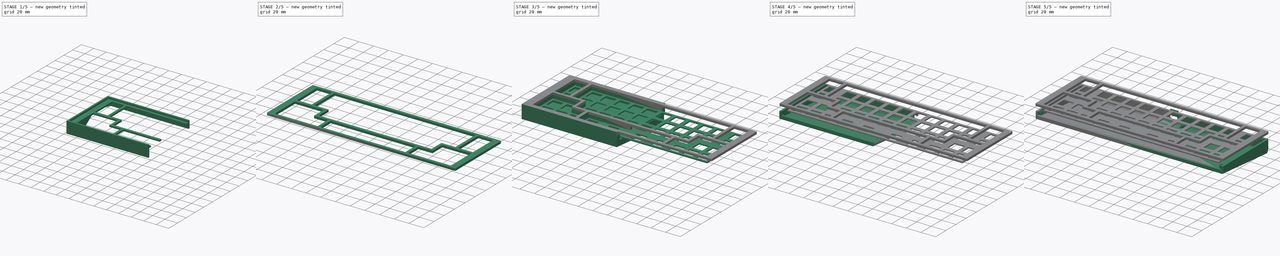
[diagram: build sequence overview — one tinted view per stage of 5, left to right]
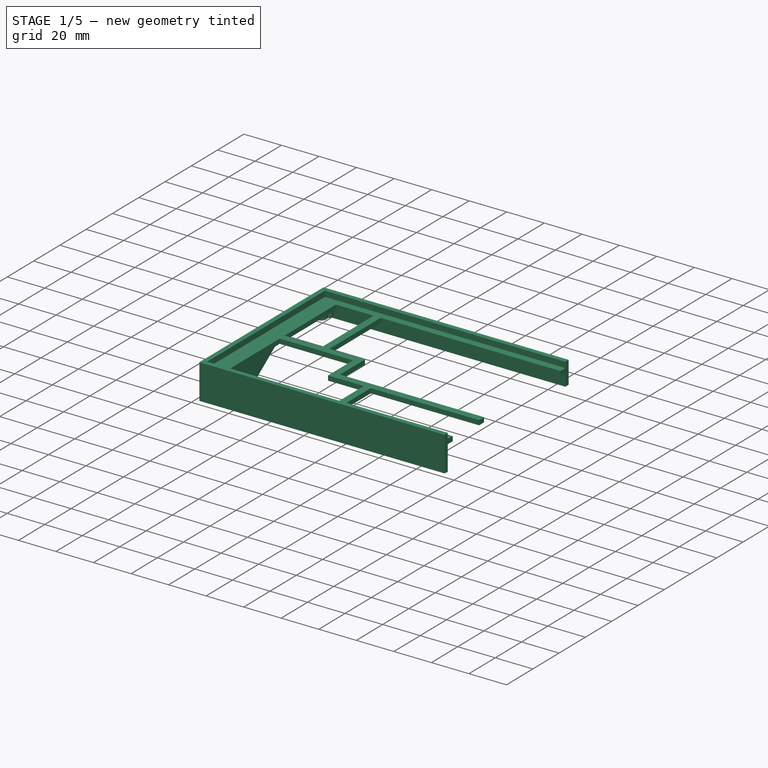
[diagram: stage 1 of 5 — iso view after this stage's code; geometry added in this stage tinted green]
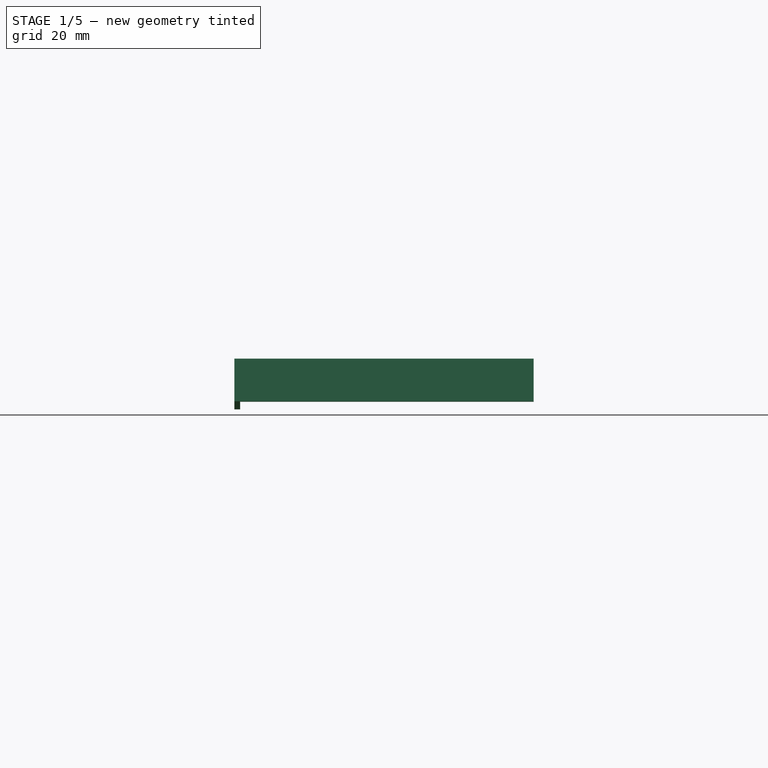
[diagram: stage 1 of 5 — front view after this stage's code; geometry added in this stage tinted green]
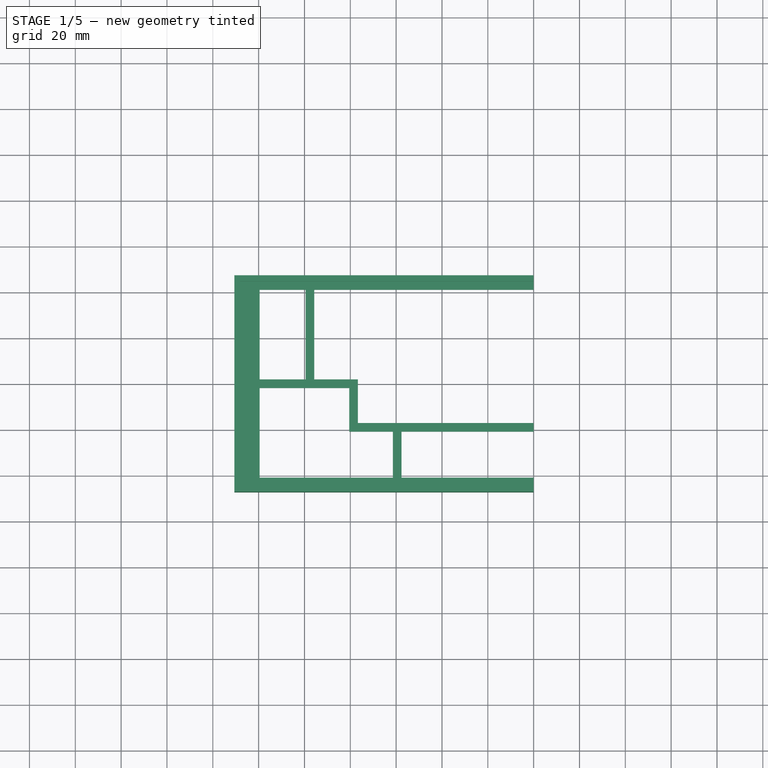
[diagram: stage 1 of 5 — top view after this stage's code; geometry added in this stage tinted green]
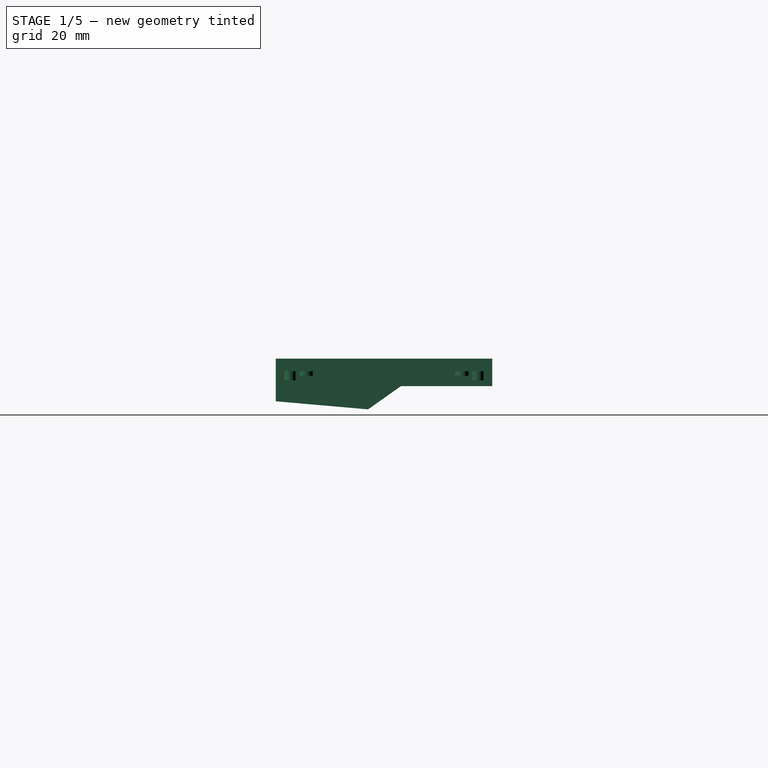
[diagram: stage 1 of 5 — right view after this stage's code; geometry added in this stage tinted green]
FCSTD DOCUMENT  (FreeCAD 0.20R29603 (Git))
Label: digdug
License: All rights reserved
LicenseURL: http://en.wikipedia.org/wiki/All_rights_reserved
objects: Sketcher::SketchObject×40, PartDesign::Pocket×26, PartDesign::Pad×17, PartDesign::Plane×10, PartDesign::Chamfer×5, PartDesign::Fillet×5, PartDesign::Body×4, Part::Mirroring×3, Part::MultiFuse×3, Spreadsheet::Sheet×1, PartDesign::SubtractiveBox×1, PartDesign::ShapeBinder×1
note: 169 computed .brp shape members not serialized (recipe doc carries the construction recipe); baked Part::Feature solids carry a one-line shape summary decoded from their .brp

FEATURE [Spreadsheet::Sheet] Spreadsheet  label="vals_Case"
  cells = A2=Dimensions; D2=Ornament; G2=Acryl; A3=spacing; B3(spacing)=19.05; D3=spaceOffset; E3(spaceOffset)==0.25 * spacing; G3=acrylBorder; H3(acrylBorder)=2; A4=borderH; B4(borderH)==0.25 * spacing - 2 * keysafety + wallThickness; D4=spaceOffsetWidth; E4(spaceoffsetu)=6; G4=acrylSafety; H4(acrylSafety)=0.1; A5=borderW; B5(borderW)==0.5 * spacing - 2 * keysafety + wallThickness; C5==0.4 * spacing - 2 * keysafety + wallThickness; D5=minWidth; E5==spaceOffset - 2 * keysafety; G5=acrylLayerHeight; H5(acrylLayerHeight)=3; A6=Edgeradius; B6(edgeradius)=3; C6=spaceOffset + 6; D6=Case; G6=acrylOverlap; H6(acrylOverlap)=0.1; A7=topExtra; B7(topExtr)=0; D7=WallThickness; E7(wallThickness)=2.5; A8=keysafety; B8(keysafety)=0.5; D8=midSectionHeight; E8(midSectionHeight)=8.5; A9=heightAbovePlate; B9(heightAbovePlate)=7.5; D9=midSectionBackInset; E9(midSectionBackInset)=3; D10=bottomBackOffset; E10(bottomBackOffset)=10; A11=caseHeight; B11(caseHeight)==4 * spacing + 2 * borderH + topExtr + 2 * keysafety + spaceOffset; D11=bottomBackInset; E11(bottomBackInset)=10; A12=caseWidth; B12(caseWidth)==spacing * 12 + 2 * borderW + 2 * keysafety + 2 * spaceOffset + caseHandOffset; D12=innerWallThickness; E12(innerWallThickness)=1.5; G12=plateholes; H12(plateHoleRadius)=1.6; J12=bottomOverlap; K12(bottomOverlap)=1.5; A13=caseHandOffset; B13(caseHandOffset)=0; D13=typingAngle; E13(typingAngle)=5; G13=plateHoleExtra; H13(plateHoleExtra)=1; A14=caseBackOffset; B14(caseBackOffset)=2; D14=topheight; E14(caseTopHeight)=12; G14=plateTopOffset; A15=OLEDWidth; B15(OledWidth)=38; G15=plateBottomOffset; A16=OLEDHeight; B16(OledHeight)=12; G16=plateThicknes; H16(plateThickness)=1.6; A17=OLEDSafety; B17(OledSafety)=2; D17=pcbToPlate; E17(pcbToPlate)=5; D18=pcbThickness; E18(pcbThickness)=1.6; A19=magOuterRad; B19(magOuterRad)=2.55; D19=HSThickness; E19(HSThickness)=3; A20=magRad; B20(magRad)=1.55; D20=HSBottomSafety; E20(HSBottomSafety)=1; A21=magOuterOffset; B21(magOuterOffset)=1; D21=bottomThickness; E21(bottomThickness)=2; D22=bottomMinHeight; E22(bottomMinHeight)==pcbToPlate + pcbThickness + HSThickness + HSBottomSafety + 0.5
FEATURE [Sketcher::SketchObject] Sketch010
  FullyConstrained = true
  MapMode = 5
  Support = -> [XY_Plane174]
  expr: Constraints[10] = <<vals_Case>>.caseHeight
  expr: Constraints[9] = <<vals_Case>>.caseWidth / 2
  sketch-geometry (4):
    g0: LineSegment StartX=-130.588 StartY=47.2438 StartZ=0 EndX=0 EndY=47.2438 EndZ=0
    g1: LineSegment StartX=-1e-16 StartY=47.2438 StartZ=0 EndX=-1e-16 EndY=-47.2438 EndZ=0
    g2: LineSegment StartX=-1e-16 StartY=-47.2438 StartZ=0 EndX=-130.588 EndY=-47.2438 EndZ=0
    g3: LineSegment StartX=-130.588 StartY=-47.2438 StartZ=0 EndX=-130.588 EndY=47.2438 EndZ=0
  constraints (11):
    c: Coincident(g0,g1)
    c: Coincident(g1,g2)
    c: Coincident(g2,g3)
    c: Coincident(g3,g0)
    c: Horizontal(g0)
    c: Horizontal(g2)
    c: Vertical(g1)
    c: Vertical(g3)
    c: Symmetric(g1,g1,g-1)
    c: DistanceX(g0,g0) = 130.588
    c: DistanceY(g3,g3) = 94.4875
FEATURE [PartDesign::Pad] Pad005
  Direction = (0,0,1)
  Length = 7.5
  Length2 = 10
  Profile = -> Sketch010
  ReferenceAxis = -> Sketch010 [N_Axis]
  Type = 0
  expr: Length = <<vals_Case>>.heightAbovePlate
FEATURE [Sketcher::SketchObject] Sketch011
  FullyConstrained = true
  MapMode = 5
  Support = -> [XY_Plane174]
  expr: Constraints[10] = <<vals_Case>>.caseWidth / 2
  expr: Constraints[9] = <<vals_Case>>.caseHeight
  sketch-geometry (4):
    g0: LineSegment StartX=-130.588 StartY=47.2438 StartZ=0 EndX=0 EndY=47.2438 EndZ=0
    g1: LineSegment StartX=0 StartY=47.2438 StartZ=0 EndX=0 EndY=-47.2438 EndZ=0
    g2: LineSegment StartX=0 StartY=-47.2438 StartZ=0 EndX=-130.588 EndY=-47.2438 EndZ=0
    g3: LineSegment StartX=-130.588 StartY=-47.2438 StartZ=0 EndX=-130.588 EndY=47.2438 EndZ=0
  constraints (11):
    c: Coincident(g0,g1)
    c: Coincident(g1,g2)
    c: Coincident(g2,g3)
    c: Coincident(g3,g0)
    c: Horizontal(g0)
    c: Horizontal(g2)
    c: Vertical(g1)
    c: Vertical(g3)
    c: Symmetric(g1,g1,g-1)
    c: DistanceY(g3,g3) = 94.4875
    c: DistanceX(g0,g0) = 130.588
FEATURE [PartDesign::Pad] Pad006
  BaseFeature = -> Pad005
  Direction = (0,0,1)
  Length = 4.5
  Length2 = 10
  Profile = -> Sketch011
  ReferenceAxis = -> Sketch011 [N_Axis]
  Reversed = true
  Type = 0
  expr: Length = <<vals_Case>>.caseTopHeight - <<vals_Case>>.heightAbovePlate
FEATURE [PartDesign::Plane] DatumPlane001  label="Top plane"
  AttachmentOffset = pos=(0,0,7.5) rot=(0,0,1;0rad)
  Length = 179.837
  MapMode = 5
  Placement = pos=(0,0,7.5) rot=(0,0,1;0rad)
  ResizeMode = 0
  Support = -> [XY_Plane174]
  Width = 118.737
  expr: .AttachmentOffset.Base.z = <<vals_Case>>.heightAbovePlate
FEATURE [Sketcher::SketchObject] Sketch012
  FullyConstrained = true
  MapMode = 5
  Placement = pos=(0,0,7.5) rot=(0,0,1;0rad)
  Support = -> [DatumPlane001]
  expr: Constraints[32] = <<vals_Case>>.spacing + 2 * <<vals_Case>>.keysafety
  expr: Constraints[33] = <<vals_Case>>.spacing * 2 + <<vals_Case>>.keysafety * 2
  expr: Constraints[35] = <<vals_Case>>.caseHeight / 2 - <<vals_Case>>.borderH
  expr: Constraints[36] = <<vals_Case>>.caseHeight / 2 - <<vals_Case>>.borderH
  expr: Constraints[38] = <<vals_Case>>.caseWidth / 2 - <<vals_Case>>.borderW
  expr: Constraints[39] = <<vals_Case>>.spacing * 2 + <<vals_Case>>.keysafety * 2
  expr: Constraints[41] = <<vals_Case>>.spacing
  expr: Constraints[42] = <<vals_Case>>.spacing * 2 + <<vals_Case>>.keysafety * 2
  expr: Constraints[43] = <<vals_Case>>.spacing
  expr: Constraints[44] = <<vals_Case>>.spacing
  expr: Constraints[45] = <<vals_Case>>.spacing * 5 + <<vals_Case>>.keysafety * 2
  expr: Constraints[46] = <<vals_Case>>.caseHandOffset / 2 - <<vals_Case>>.keysafety
  expr: Constraints[47] = <<vals_Case>>.spacing
  expr: Constraints[59] = <<vals_Case>>.spacing * <<vals_Case>>.spaceoffsetu / 2 + <<vals_Case>>.keysafety
  sketch-geometry (20):
    g0: LineSegment StartX=0.5 StartY=40.9813 StartZ=0 EndX=-95.75 EndY=40.9813 EndZ=0
    g1: LineSegment StartX=-95.75 StartY=40.9813 StartZ=0 EndX=-95.75 EndY=1.88125 EndZ=0
    g2: LineSegment StartX=-95.75 StartY=1.88125 StartZ=0 EndX=-76.7 EndY=1.88125 EndZ=0
    g3: LineSegment StartX=-76.7 StartY=1.88125 StartZ=0 EndX=-76.7 EndY=-17.1687 EndZ=0
    g4: LineSegment StartX=-76.7 StartY=-17.1687 StartZ=0 EndX=0.5 EndY=-17.1687 EndZ=0
    g5: LineSegment StartX=0.5 StartY=-17.1687 StartZ=0 EndX=0.5 EndY=40.9813 EndZ=0
    g6: LineSegment StartX=-119.562 StartY=40.9813 StartZ=0 EndX=-99.5125 EndY=40.9813 EndZ=0
    g7: LineSegment StartX=-99.5125 StartY=40.9813 StartZ=0 EndX=-99.5125 EndY=1.88125 EndZ=0
    g8: LineSegment StartX=-99.5125 StartY=1.88125 StartZ=0 EndX=-119.562 EndY=1.88125 EndZ=0
    g9: LineSegment StartX=-119.562 StartY=1.88125 StartZ=0 EndX=-119.562 EndY=40.9813 EndZ=0
    g10: LineSegment StartX=-119.562 StartY=-1.88125 StartZ=0 EndX=-80.4625 EndY=-1.88125 EndZ=0
    g11: LineSegment StartX=-80.4625 StartY=-1.88125 StartZ=0 EndX=-80.4625 EndY=-20.9313 EndZ=0
    g12: LineSegment StartX=-80.4625 StartY=-20.9313 StartZ=0 EndX=-61.4125 EndY=-20.9313 EndZ=0
    g13: LineSegment StartX=-61.4125 StartY=-20.9313 StartZ=0 EndX=-61.4125 EndY=-40.9813 EndZ=0
    g14: LineSegment StartX=-61.4125 StartY=-40.9813 StartZ=0 EndX=-119.562 EndY=-40.9813 EndZ=0
    g15: LineSegment StartX=-119.562 StartY=-40.9813 StartZ=0 EndX=-119.562 EndY=-1.88125 EndZ=0
    g16: LineSegment StartX=-57.65 StartY=-20.9313 StartZ=0 EndX=0 EndY=-20.9313 EndZ=0
    g17: LineSegment StartX=0 StartY=-20.9313 StartZ=0 EndX=0 EndY=-40.9813 EndZ=0
    g18: LineSegment StartX=0 StartY=-40.9813 StartZ=0 EndX=-57.65 EndY=-40.9813 EndZ=0
    g19: LineSegment StartX=-57.65 StartY=-40.9813 StartZ=0 EndX=-57.65 EndY=-20.9313 EndZ=0
  constraints (60):
    c: Horizontal(g0)
    c: Coincident(g0,g1)
    c: Vertical(g1)
    c: Coincident(g1,g2)
    c: Horizontal(g2)
    c: Coincident(g2,g3)
    c: Vertical(g3)
    c: Coincident(g3,g4)
    c: Horizontal(g4)
    c: Coincident(g4,g5)
    c: Coincident(g5,g0)
    c: Vertical(g5)
    c: Horizontal(g6)
    c: Coincident(g6,g7)
    c: Vertical(g7)
    c: Coincident(g7,g8)
    c: Coincident(g8,g9)
    c: Coincident(g9,g6)
    c: Vertical(g9)
    c: Horizontal(g10)
    c: Coincident(g10,g11)
    c: Coincident(g11,g12)
    c: Coincident(g12,g13)
    c: Coincident(g13,g14)
    c: Coincident(g14,g15)
    c: Coincident(g15,g10)
    c: Vertical(g15)
    c: Vertical(g11)
    c: Vertical(g13)
    c: Horizontal(g12)
    c: Horizontal(g14)
    c: Horizontal(g8)
    c: DistanceX(g6,g6) = 20.05
    c: DistanceY(g9,g9) = 39.1
    c: Equal(g9,g15)
    c: DistanceY(g-1,g6) = 40.9813
    c: DistanceY(g14,g-1) = 40.9813
    c: Vertical(g10,g8)
    c: DistanceX(g6,g-1) = 119.562
    c: DistanceY(g1,g1) = 39.1
    c: Horizontal(g0,g6)
    c: DistanceX(g2,g2) = 19.05
    c: DistanceX(g10,g10) = 39.1
    c: DistanceY(g11,g11) = 19.05
    c: DistanceX(g12,g12) = 19.05
    c: DistanceX(g0,g0) = 96.25
    c: DistanceX(g0,g-1) = -0.5
    c: DistanceY(g3,g3) = 19.05
    c: Coincident(g16,g17)
    c: Coincident(g17,g18)
    c: Coincident(g18,g19)
    c: Coincident(g19,g16)
    c: Horizontal(g16)
    c: Horizontal(g18)
    c: Vertical(g17)
    c: Vertical(g19)
    c: PointOnObject(g17,g-2)
    c: Horizontal(g16,g12)
    c: Horizontal(g18,g13)
    c: DistanceX(g16,g16) = 57.65
FEATURE [PartDesign::Pocket] Pocket005
  BaseFeature = -> Pad006
  Direction = (0,0,-1)
  Length = 12
  Length2 = 5
  Profile = -> Sketch012
  ReferenceAxis = -> Sketch012 [N_Axis]
  Type = 0
  expr: Length = <<vals_Case>>.caseTopHeight
FEATURE [PartDesign::Plane] DatumPlane002
  AttachmentOffset = pos=(0,0,-4.5) rot=(0,0,1;0rad)
  Length = 179.837
  MapMode = 5
  Placement = pos=(0,0,-4.5) rot=(0,0,1;0rad)
  ResizeMode = 0
  Support = -> [XY_Plane174]
  Width = 118.737
  expr: .AttachmentOffset.Base.z = <<vals_Case>>.heightAbovePlate - <<vals_Case>>.caseTopHeight
FEATURE [Sketcher::SketchObject] Sketch013
  FullyConstrained = true
  MapMode = 5
  Placement = pos=(0,0,-4.5) rot=(0,0,1;0rad)
  Support = -> [DatumPlane002]
  expr: Constraints[10] = <<vals_Case>>.caseHeight
  expr: Constraints[9] = <<vals_Case>>.caseWidth / 2
  sketch-geometry (4):
    g0: LineSegment StartX=-130.588 StartY=47.2438 StartZ=0 EndX=0 EndY=47.2438 EndZ=0
    g1: LineSegment StartX=-1e-16 StartY=47.2438 StartZ=0 EndX=-1e-16 EndY=-47.2438 EndZ=0
    g2: LineSegment StartX=-1e-16 StartY=-47.2438 StartZ=0 EndX=-130.588 EndY=-47.2438 EndZ=0
    g3: LineSegment StartX=-130.588 StartY=-47.2438 StartZ=0 EndX=-130.588 EndY=47.2438 EndZ=0
  constraints (11):
    c: Coincident(g0,g1)
    c: Coincident(g1,g2)
    c: Coincident(g2,g3)
    c: Coincident(g3,g0)
    c: Horizontal(g0)
    c: Horizontal(g2)
    c: Vertical(g1)
    c: Vertical(g3)
    c: Symmetric(g1,g1,g-1)
    c: DistanceX(g0,g0) = 130.588
    c: DistanceY(g3,g3) = 94.4875
FEATURE [PartDesign::Pad] Pad007
  BaseFeature = -> Pocket005
  Direction = (0,0,1)
  Length = 30
  Length2 = 10
  Profile = -> Sketch013
  ReferenceAxis = -> Sketch013 [N_Axis]
  Reversed = true
  Type = 0
  expr: Length = 30
FEATURE [PartDesign::Plane] DatumPlane003
  AttachmentOffset = pos=(0,0,-130.588) rot=(0,0,1;0rad)
  Length = 108.234
  MapMode = 5
  Placement = pos=(-130.587,2.9e-14,-2.9e-14) rot=(0.57735,0.57735,0.57735;2.0944rad)
  ResizeMode = 0
  Support = -> [YZ_Plane174]
  Width = 63.7468
  expr: .AttachmentOffset.Base.z = -<<vals_Case>>.caseWidth / 2
FEATURE [Sketcher::SketchObject] Sketch014
  FullyConstrained = true
  MapMode = 5
  Placement = pos=(-130.587,2.9e-14,-2.9e-14) rot=(0.57735,0.57735,0.57735;2.0944rad)
  Support = -> [DatumPlane003]
  expr: Constraints[14] = <<vals_Case>>.caseBackOffset
  expr: Constraints[20] = <<vals_Case>>.caseTopHeight - <<vals_Case>>.heightAbovePlate
  expr: Constraints[2] = <<vals_Case>>.bottomMinHeight
  expr: Constraints[3] = <<vals_Case>>.typingAngle
  expr: Constraints[5] = <<vals_Case>>.caseHeight / 2 - <<vals_Case>>.caseBackOffset
  expr: Constraints[6] = <<vals_Case>>.caseHeight / 2
  expr: Constraints[7] = 30
  sketch-geometry (7):
    g0: LineSegment StartX=-47.2438 StartY=-11.1 StartZ=0 EndX=42.2438 EndY=-18.9291 EndZ=0
    g1: LineSegment StartX=42.2438 StartY=-18.9291 StartZ=0 EndX=45.2438 EndY=-12.9291 EndZ=0
    g2: LineSegment StartX=47.2438 StartY=-41.1 StartZ=0 EndX=-47.2438 EndY=-41.1 EndZ=0
    g3: LineSegment StartX=-47.2438 StartY=-11.1 StartZ=0 EndX=-47.2438 EndY=-41.1 EndZ=0
    g4: LineSegment StartX=47.2438 StartY=-41.1 StartZ=0 EndX=47.2438 EndY=-4.5 EndZ=0
    g5: LineSegment StartX=47.2438 StartY=-4.5 StartZ=0 EndX=45.2438 EndY=-4.5 EndZ=0
    g6: LineSegment StartX=45.2438 StartY=-4.5 StartZ=0 EndX=45.2438 EndY=-12.9291 EndZ=0
  constraints (21):
    c: Coincident(g0,g1)
    c: Horizontal(g2)
    c: DistanceY(g0,g-1) = 11.1
    c: Angle(g0,g-1) = 0.0872665
    c: DistanceY(g0,g1) = 6
    c: DistanceX(g-1,g1) = 45.2438
    c: DistanceX(g0,g-1) = 47.2438
    c: DistanceY(g2,g0) = 30
    c: DistanceX(g0,g1) = 3
    c: Vertical(g3)
    c: Coincident(g2,g3)
    c: Coincident(g3,g0)
    c: Coincident(g4,g2)
    c: Vertical(g4)
    c: DistanceX(g1,g4) = 2
    c: Coincident(g5,g4)
    c: Horizontal(g5)
    c: Coincident(g6,g5)
    c: Coincident(g6,g1)
    c: Vertical(g6)
    c: DistanceY(g4,g-1) = 4.5
FEATURE [PartDesign::Pocket] Pocket006
  BaseFeature = -> Pad007
  Direction = (-1,1e-16,-1e-16)
  Length = 130.588
  Length2 = 5
  Profile = -> Sketch014
  ReferenceAxis = -> Sketch014 [N_Axis]
  Reversed = true
  Type = 0
  expr: Length = <<vals_Case>>.caseWidth / 2
FEATURE [Sketcher::SketchObject] Sketch015
  FullyConstrained = false
  MapMode = 5
  Placement = pos=(-130.587,2.9e-14,-2.9e-14) rot=(0.57735,0.57735,0.57735;2.0944rad)
  Support = -> [DatumPlane003]
  sketch-geometry (5):
    g0: LineSegment StartX=7.36554 StartY=-4.5 StartZ=0 EndX=-18.7892 EndY=-23.006 EndZ=0
    g1: LineSegment StartX=-18.7892 StartY=-23.006 StartZ=0 EndX=54.0162 EndY=-23.006 EndZ=0
    g2: LineSegment StartX=54.0162 StartY=-23.006 StartZ=0 EndX=67.7623 EndY=-16.9849 EndZ=0
    g3: LineSegment StartX=7.36554 StartY=-4.5 StartZ=0 EndX=69.9389 EndY=-4.5 EndZ=0
    g4: LineSegment StartX=69.9389 StartY=-4.5 StartZ=0 EndX=67.7623 EndY=-16.9849 EndZ=0
  constraints (8):
    c: Coincident(g0,g1)
    c: Coincident(g1,g2)
    c: Horizontal(g1)
    c: Coincident(g0,g3)
    c: Horizontal(g3)
    c: Coincident(g3,g4)
    c: Coincident(g4,g2)
    c: DistanceY(g0,g-1) = 4.5
FEATURE [PartDesign::Pocket] Pocket007
  BaseFeature = -> Pocket006
  Direction = (-1,1e-16,-1e-16)
  Length = 261.175
  Length2 = 5
  Profile = -> Sketch015
  ReferenceAxis = -> Sketch015 [N_Axis]
  Reversed = true
  Type = 0
  expr: Length = <<vals_Case>>.caseWidth
FEATURE [Sketcher::SketchObject] Sketch022
  FullyConstrained = true
  MapMode = 5
  Placement = pos=(0,0,7.5) rot=(0,0,1;0rad)
  Support = -> [DatumPlane001]
  expr: Constraints[10] = <<vals_Case>>.caseHeight - <<vals_Case>>.wallThickness * 2
  expr: Constraints[9] = <<vals_Case>>.caseWidth / 2 - <<vals_Case>>.wallThickness
  sketch-geometry (4):
    g0: LineSegment StartX=-128.088 StartY=44.7438 StartZ=0 EndX=0 EndY=44.7438 EndZ=0
    g1: LineSegment StartX=0 StartY=44.7438 StartZ=0 EndX=0 EndY=-44.7438 EndZ=0
    g2: LineSegment StartX=0 StartY=-44.7438 StartZ=0 EndX=-128.088 EndY=-44.7438 EndZ=0
    g3: LineSegment StartX=-128.088 StartY=-44.7438 StartZ=0 EndX=-128.088 EndY=44.7438 EndZ=0
  constraints (11):
    c: Coincident(g0,g1)
    c: Coincident(g1,g2)
    c: Coincident(g2,g3)
    c: Coincident(g3,g0)
    c: Horizontal(g0)
    c: Horizontal(g2)
    c: Vertical(g1)
    c: Vertical(g3)
    c: Symmetric(g1,g1,g-1)
    c: DistanceX(g0,g0) = 128.088
    c: DistanceY(g1,g1) = 89.4875
FEATURE [PartDesign::Pocket] Pocket011
  BaseFeature = -> Pocket007
  Direction = (0,0,-1)
  Length = 3
  Length2 = 5
  Profile = -> Sketch022
  ReferenceAxis = -> Sketch022 [N_Axis]
  Type = 0
  expr: Length = <<vals_Case>>.acrylLayerHeight
FEATURE [PartDesign::Plane] DatumPlane007
  AttachmentOffset = pos=(0,0,2) rot=(0,0,1;0rad)
  Length = 179.837
  MapMode = 5
  Placement = pos=(0,0,2) rot=(0,0,1;0rad)
  ResizeMode = 0
  Support = -> [XY_Plane174]
  Width = 118.737
  expr: .AttachmentOffset.Base.z = <<vals_Case>>.heightAbovePlate - <<vals_Case>>.wallThickness - <<vals_Case>>.acrylLayerHeight
FEATURE [Sketcher::SketchObject] Sketch023
  FullyConstrained = true
  MapMode = 5
  Placement = pos=(0,0,2) rot=(0,0,1;0rad)
  Support = -> [DatumPlane007]
  expr: Constraints[10] = <<vals_Case>>.caseWidth / 2 - <<vals_Case>>.wallThickness
  expr: Constraints[9] = <<vals_Case>>.caseHeight - 2 * <<vals_Case>>.wallThickness
  sketch-geometry (4):
    g0: LineSegment StartX=-128.088 StartY=44.7438 StartZ=0 EndX=0 EndY=44.7438 EndZ=0
    g1: LineSegment StartX=0 StartY=44.7438 StartZ=0 EndX=0 EndY=-44.7438 EndZ=0
    g2: LineSegment StartX=0 StartY=-44.7438 StartZ=0 EndX=-128.088 EndY=-44.7438 EndZ=0
    g3: LineSegment StartX=-128.088 StartY=-44.7438 StartZ=0 EndX=-128.088 EndY=44.7438 EndZ=0
  constraints (11):
    c: Coincident(g0,g1)
    c: Coincident(g1,g2)
    c: Coincident(g2,g3)
    c: Coincident(g3,g0)
    c: Horizontal(g0)
    c: Horizontal(g2)
    c: Vertical(g1)
    c: Vertical(g3)
    c: Symmetric(g1,g1,g-1)
    c: DistanceY(g1,g1) = 89.4875
    c: DistanceX(g0,g0) = 128.088
FEATURE [PartDesign::Pocket] Pocket012
  BaseFeature = -> Pocket011
  Direction = (0,0,-1)
  Length = 30
  Length2 = 5
  Profile = -> Sketch023
  ReferenceAxis = -> Sketch023 [N_Axis]
  Type = 0
  expr: Length = 30
FEATURE [PartDesign::Plane] DatumPlane
  AttachmentOffset = pos=(0,0,2.5) rot=(0,0,1;0rad)
  Length = 179.837
  MapMode = 5
  Placement = pos=(0,0,-2) rot=(0,0,1;0rad)
  ResizeMode = 0
  Support = -> [DatumPlane002]
  Width = 118.737
  expr: .AttachmentOffset.Base.z = <<vals_Case>>.wallThickness
FEATURE [Sketcher::SketchObject] Sketch
  FullyConstrained = false
  MapMode = 5
  Placement = pos=(0,0,-2) rot=(0,0,1;0rad)
  Support = -> [DatumPlane]
  expr: Constraints[2] = <<vals_Case>>.caseHeight / 2 - <<vals_Case>>.borderH
  expr: Constraints[3] = <<vals_Case>>.caseWidth / 2 - <<vals_Case>>.wallThickness - (<<vals_Case>>.borderW - <<vals_Case>>.wallThickness) / 2
  sketch-geometry (2):
    g0: Circle CenterX=-123.825 CenterY=40.9813 CenterZ=0 NormalX=0 NormalY=0 NormalZ=1 AngleXU=0 Radius=2.5
    g1: Circle CenterX=-123.825 CenterY=-40.9813 CenterZ=0 NormalX=0 NormalY=0 NormalZ=1 AngleXU=0 Radius=2.5
  constraints (4):
    c: Equal(g0,g1)
    c: Symmetric(g0,g1,g-1)
    c: DistanceY(g-1,g0) = 40.9813
    c: DistanceX(g1,g-1) = 123.825
FEATURE [PartDesign::Pad] Pad016
  BaseFeature = -> Pocket012
  Direction = (0,0,1)
  Length = 6
  Length2 = 10
  Profile = -> Sketch
  ReferenceAxis = -> Sketch [N_Axis]
  Type = 0
FEATURE [Sketcher::SketchObject] Sketch044
  FullyConstrained = false
  MapMode = 5
  Placement = pos=(0,0,-2) rot=(0,0,1;0rad)
  Support = -> [DatumPlane]
  sketch-geometry (1):
    g0: Circle CenterX=-124.731 CenterY=40.4759 CenterZ=0 NormalX=0 NormalY=0 NormalZ=1 AngleXU=0 Radius=1.307
FEATURE [PartDesign::Pocket] Pocket026
  BaseFeature = -> Pad016
  Direction = (0,0,-1)
  Length = 3.1
  Length2 = 5
  Profile = -> Sketch044
  ReferenceAxis = -> Sketch044 [N_Axis]
  Reversed = true
  Type = 0
  expr: Length = 3.1
FEATURE [PartDesign::Pocket] Pocket027
  BaseFeature = -> Pocket026
  Direction = (0,0,-1)
  Length = 3.2
  Length2 = 5
  Profile = -> Sketch044
  ReferenceAxis = -> Sketch044 [N_Axis]
  Type = 0
  expr: Length = 3.2
FEATURE [Sketcher::SketchObject] Sketch046
  FullyConstrained = true
  MapMode = 5
  Placement = pos=(0,0,2) rot=(1,0,0;3.14159rad)
  Support = -> [Pocket027]
  expr: Constraints[0] = 1.6 + 1.4
  expr: Constraints[1] = <<vals_Case>>.caseWidth / 2 - <<vals_Case>>.borderW + 3.25
  sketch-geometry (2):
    g0: Circle CenterX=-122.812 CenterY=34 CenterZ=0 NormalX=0 NormalY=0 NormalZ=1 AngleXU=0 Radius=3
    g1: Circle CenterX=-122.812 CenterY=-34 CenterZ=0 NormalX=0 NormalY=0 NormalZ=1 AngleXU=0 Radius=3
  constraints (5):
    c: Radius(g0) = 3
    c: DistanceX(g0,g-1) = 122.812
    c: DistanceY(g-1,g0) = 34
    c: Equal(g1,g0)
    c: Symmetric(g0,g1,g-1)
FEATURE [PartDesign::Pad] Pad018
  BaseFeature = -> Pocket027
  Direction = (0,0,-1)
  Length = 2
  Length2 = 10
  Profile = -> Sketch046
  ReferenceAxis = -> Sketch046 [N_Axis]
  Type = 0
  expr: Length = <<vals_Case>>.heightAbovePlate - <<vals_Case>>.wallThickness - <<vals_Case>>.acrylLayerHeight
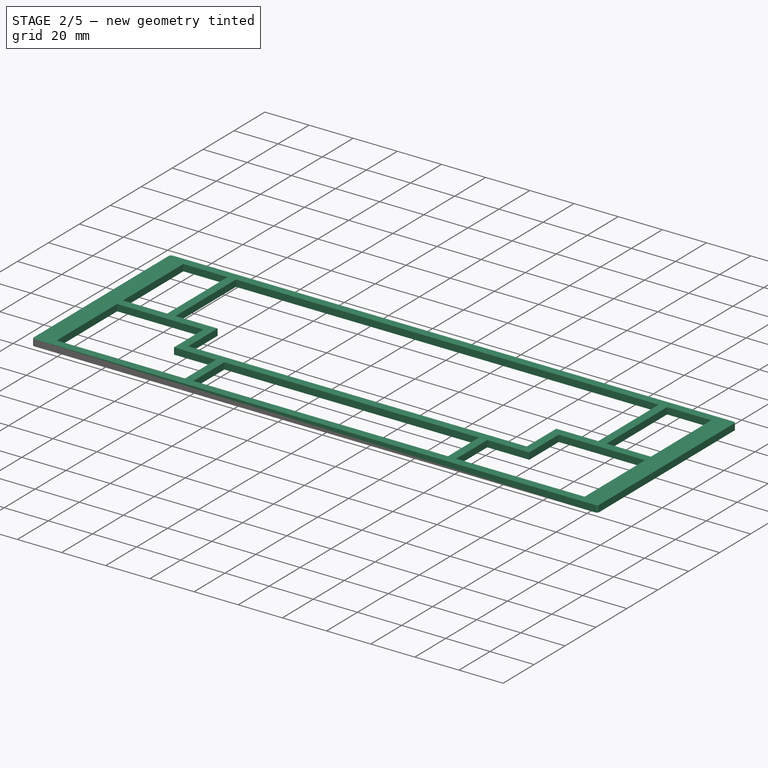
[diagram: stage 2 of 5 — iso view after this stage's code; geometry added in this stage tinted green]
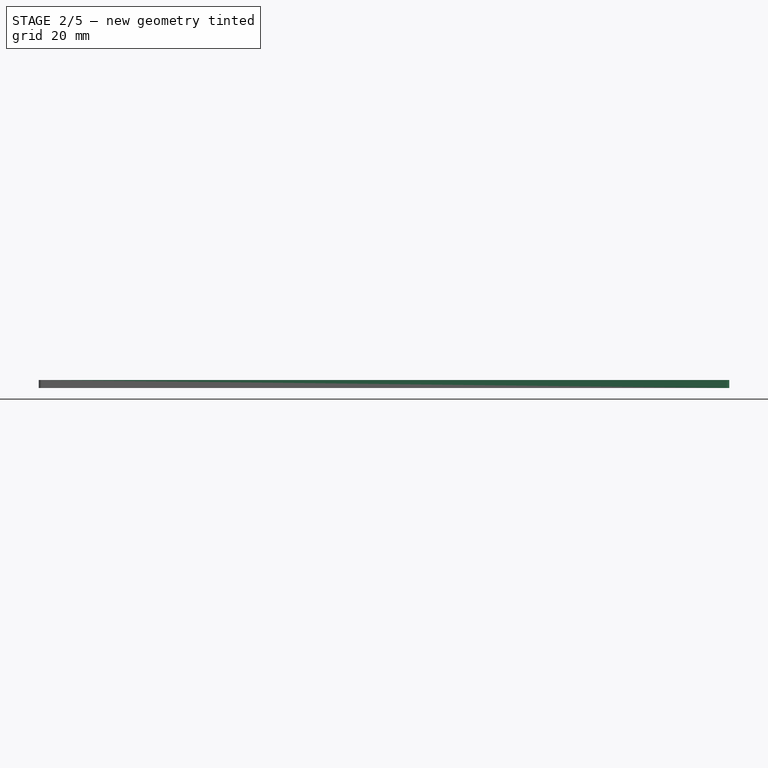
[diagram: stage 2 of 5 — front view after this stage's code; geometry added in this stage tinted green]
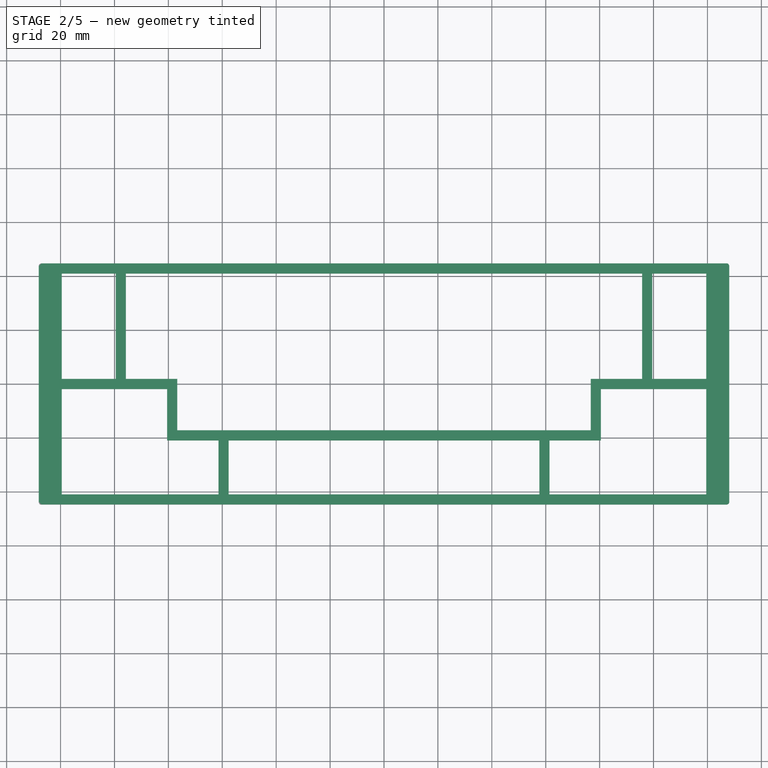
[diagram: stage 2 of 5 — top view after this stage's code; geometry added in this stage tinted green]
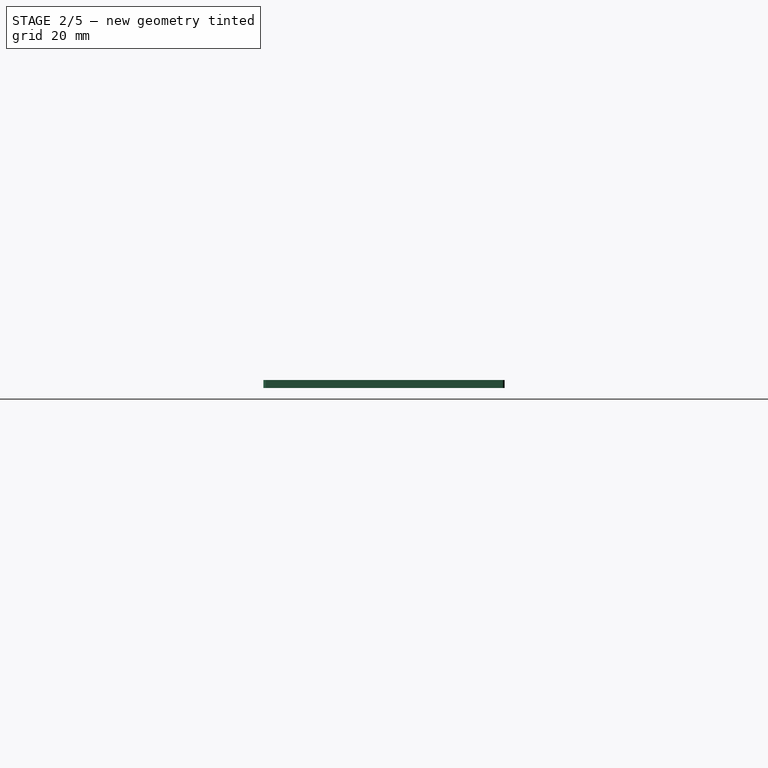
[diagram: stage 2 of 5 — right view after this stage's code; geometry added in this stage tinted green]
FEATURE [Sketcher::SketchObject] Sketch047
  FullyConstrained = false
  MapMode = 5
  Placement = pos=(0,0,0) rot=(1,0,0;3.14159rad)
  Support = -> [Pad018]
  sketch-geometry (2):
    g0: Circle CenterX=-123.684 CenterY=34.4215 CenterZ=0 NormalX=0 NormalY=0 NormalZ=1 AngleXU=0 Radius=1.46249
    g1: Circle CenterX=-123.152 CenterY=-33.6818 CenterZ=0 NormalX=0 NormalY=0 NormalZ=1 AngleXU=0 Radius=1.13562
FEATURE [PartDesign::Pocket] Pocket028
  BaseFeature = -> Pad018
  Direction = (0,0,1)
  Length = 5
  Length2 = 5
  Profile = -> Sketch047
  ReferenceAxis = -> Sketch047 [N_Axis]
  Type = 3
  UpToFace = -> Pad018 [Face14]
  expr: Length = 5mm
FEATURE [Sketcher::SketchObject] Sketch051
  ExternalGeometry = -> [Pocket028]
  FullyConstrained = false
  MapMode = 5
  Placement = pos=(0,0,-2) rot=(1,0,0;3.14159rad)
  Support = -> [Pocket028]
  sketch-geometry (1):
    g0: Circle CenterX=-122.125 CenterY=-35.4941 CenterZ=0 NormalX=0 NormalY=0 NormalZ=1 AngleXU=0 Radius=0.534172
FEATURE [PartDesign::Pocket] Pocket029
  BaseFeature = -> Pocket028
  Direction = (0,0,1)
  Length = 5
  Length2 = 5
  Profile = -> Sketch051
  ReferenceAxis = -> Sketch051 [N_Axis]
  Type = 0
FEATURE [Sketcher::SketchObject] Sketch054
  ExternalGeometry = -> [Pocket029]
  FullyConstrained = true
  MapMode = 5
  Placement = pos=(-1e-16,0,0) rot=(0.57735,0.57735,0.57735;2.0944rad)
  Support = -> [Pocket029]
  sketch-geometry (10):
    g0: LineSegment StartX=-44.7438 StartY=-8 StartZ=0 EndX=-43.9205 EndY=-8.82322 EndZ=0
    g1: LineSegment StartX=-43.9205 StartY=-9.17678 StartZ=0 EndX=-44.7438 EndY=-10 EndZ=0
    g2: LineSegment StartX=-44.7438 StartY=-10 StartZ=0 EndX=-44.7438 EndY=-8 EndZ=0
    g3: LineSegment StartX=44.7438 StartY=-2 StartZ=0 EndX=43.9205 EndY=-2.82322 EndZ=0
    g4: LineSegment StartX=43.9205 StartY=-3.17678 StartZ=0 EndX=44.7438 EndY=-4 EndZ=0
    g5: LineSegment StartX=44.7438 StartY=-4 StartZ=0 EndX=44.7438 EndY=-2 EndZ=0
    g6: ArcOfCircle CenterX=44.0973 CenterY=-3 CenterZ=0 NormalX=0 NormalY=0 NormalZ=1 AngleXU=0 Radius=0.25 StartAngle=2.35619 EndAngle=3.92699
    g7: GeomPoint X=43.7438 Y=-3 Z=0
    g8: ArcOfCircle CenterX=-44.0973 CenterY=-9 CenterZ=0 NormalX=0 NormalY=0 NormalZ=1 AngleXU=0 Radius=0.25 StartAngle=5.49779 EndAngle=7.06858
    g9: GeomPoint X=-43.7438 Y=-9 Z=0
  constraints (26):
    c: Coincident(g1,g2)
    c: Coincident(g2,g0)
    c: Vertical(g2)
    c: DistanceX(g0,g9) = 1
    c: DistanceY(g9,g0) = 1
    c: Perpendicular(g1,g0)
    c: DistanceY(g0,g-1) = 8
    c: Coincident(g4,g5)
    c: Coincident(g5,g3)
    c: DistanceY(g7,g3) = 1
    c: DistanceX(g7,g3) = 1
    c: Perpendicular(g4,g3)
    c: DistanceY(g3,g-1) = 2
    c: PointOnObject(g7,g3)
    c: PointOnObject(g7,g4)
    c: Tangent(g3,g6) = -1.5708
    c: Tangent(g4,g6) = -1.5708
    c: PointOnObject(g9,g0)
    c: PointOnObject(g9,g1)
    c: Tangent(g0,g8) = 1.5708
    c: Tangent(g1,g8) = 1.5708
    c: Equal(g8,g6)
    c: Radius(g6) = 0.25
    c: PointOnObject(g1,g-3)
    c: PointOnObject(g4,g-4)
    c: Vertical(g5)
FEATURE [PartDesign::Pad] Pad020
  BaseFeature = -> Pocket029
  Direction = (1,0,0)
  Length = 2.5
  Length2 = 10
  Profile = -> Sketch054
  ReferenceAxis = -> Sketch054 [N_Axis]
  Reversed = true
  Type = 0
FEATURE [PartDesign::Fillet] Fillet
  Base = -> Pad020 [Edge103,Edge150]
  BaseFeature = -> Pad020
  Radius = 4
  SupportTransform = false
  UseAllEdges = false
FEATURE [PartDesign::Fillet] Fillet001
  Base = -> Fillet [Edge26,Edge25]
  BaseFeature = -> Fillet
  Radius = 3
  SupportTransform = false
  UseAllEdges = false
  expr: Radius = <<vals_Case>>.edgeradius
FEATURE [PartDesign::Chamfer] Chamfer001
  Angle = 45
  Base = -> Fillet001 [Edge16]
  BaseFeature = -> Fillet001
  ChamferType = 0
  FlipDirection = false
  Size = 1
  Size2 = 1
  SupportTransform = false
  UseAllEdges = false
FEATURE [PartDesign::Fillet] Fillet002
  Base = -> Chamfer001 [Edge90,Edge92]
  BaseFeature = -> Chamfer001
  Radius = 1
  SupportTransform = false
  UseAllEdges = false
FEATURE [PartDesign::Chamfer] Chamfer004
  Angle = 45
  Base = -> Fillet002 [Edge9]
  BaseFeature = -> Fillet002
  ChamferType = 0
  FlipDirection = false
  Size = 0.5
  Size2 = 1
  SupportTransform = false
  UseAllEdges = false
FEATURE [PartDesign::Body] Body006  label="bottom"
  Group = -> [Sketch016,Pad008,Sketch017,Pad009,DatumPlane004,Sketch018,Pocket008,DatumPlane005,Sketch019,Pad010,DatumPlane006,Sketch020,Pocket009,Sketch021,Pocket010,Sketch024,Pocket013,Sketch025,Pocket014,DatumPlane008,Sketch026,Pocket015,Sketch027,Pocket016,Sketch028,Pocket017,DatumPlane009,Sketch029,Pad011,Pocket018,Sketch030,Pocket019,Sketch031,Pad012,Sketch032,Pocket020,Sketch033,Pocket021,Sketch034,+16 more]
  Origin = -> Origin175
  Tip = -> Fillet003
FEATURE [PartDesign::Fillet] Fillet004
  Base = -> Chamfer004 [Edge117,Edge82]
  BaseFeature = -> Chamfer004
  Radius = 1
  SupportTransform = false
  UseAllEdges = false
FEATURE [PartDesign::Body] Body005  label="top"
  Group = -> [Sketch010,Pad005,Sketch011,Pad006,DatumPlane001,Sketch012,Pocket005,DatumPlane002,Sketch013,Pad007,DatumPlane003,Sketch014,Pocket006,Sketch015,Pocket007,Sketch022,Pocket011,DatumPlane007,Sketch023,Pocket012,DatumPlane,Sketch,Pad016,Sketch044,Pocket026,Pocket027,Sketch046,Pad018,Sketch047,Pocket028,Sketch051,Pocket029,Sketch054,Pad020,Fillet,Fillet001,Chamfer001,Fillet002,Chamfer004,Fillet004]
  Origin = -> Origin174
  Tip = -> Fillet004
FEATURE [Part::Mirroring] Part__Mirroring  label="top (Mirror #1)"
  Base = (0,0,0)
  Normal = (1,0,0)
  Source = -> Body005
FEATURE [Part::MultiFuse] Fusion  label="case_top"
  Refine = true
  Shapes = -> [Body005,Part__Mirroring]
FEATURE [PartDesign::ShapeBinder] ShapeBinder
  Support = -> [Fusion]
  TraceSupport = false
FEATURE [PartDesign::Pad] Pad021
  Direction = (0,0,1)
  Length = 3
  Length2 = 10
  Profile = -> ShapeBinder
  Type = 0
FEATURE [PartDesign::Body] Body  label="case_inlay"
  Group = -> [ShapeBinder,Pad021]
  Origin = -> Origin
  Tip = -> Pad021
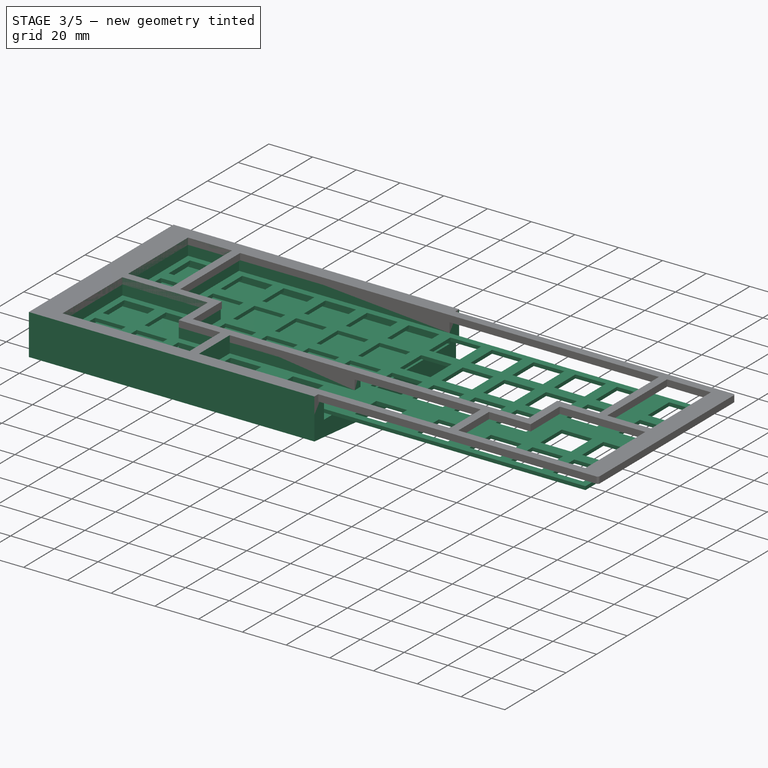
[diagram: stage 3 of 5 — iso view after this stage's code; geometry added in this stage tinted green]
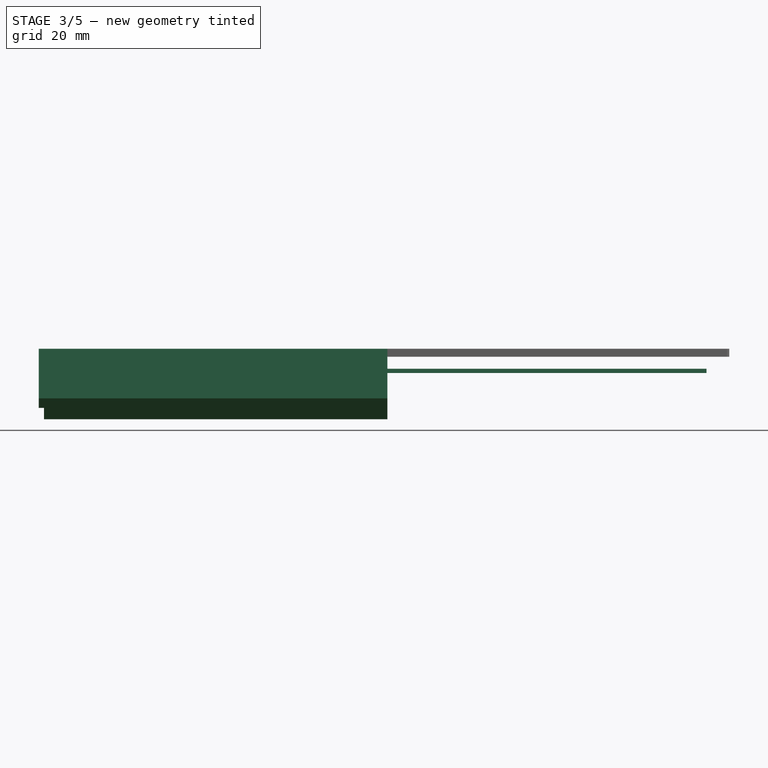
[diagram: stage 3 of 5 — front view after this stage's code; geometry added in this stage tinted green]
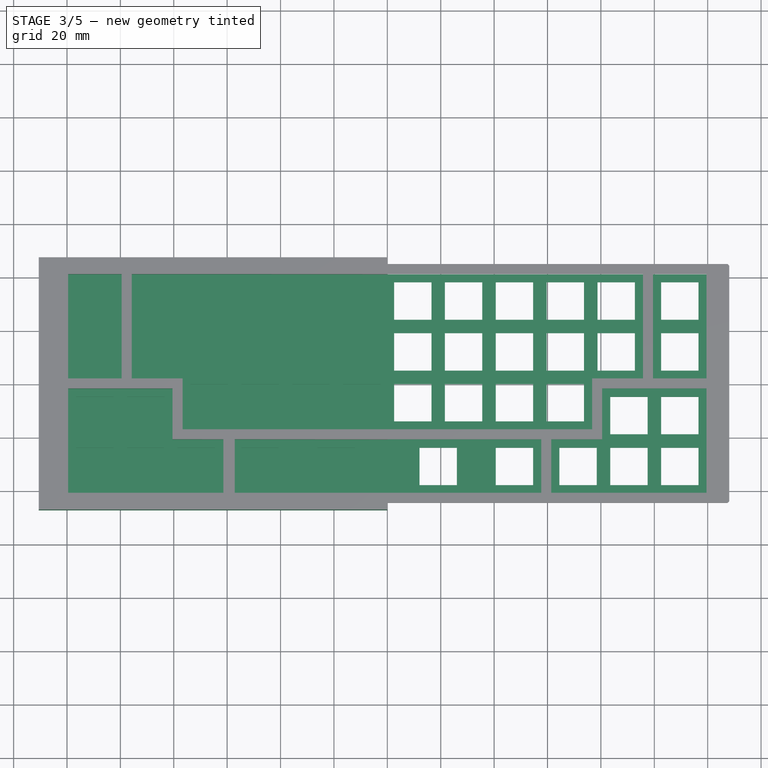
[diagram: stage 3 of 5 — top view after this stage's code; geometry added in this stage tinted green]
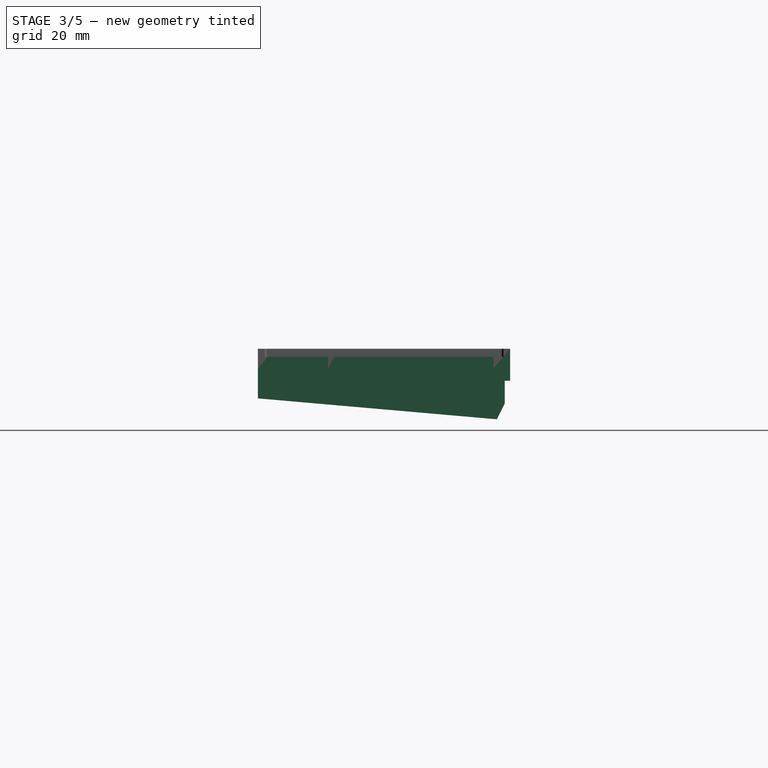
[diagram: stage 3 of 5 — right view after this stage's code; geometry added in this stage tinted green]
FEATURE [PartDesign::Plane] DatumPlane004  label="Top plane001"
  AttachmentOffset = pos=(0,0,7.5) rot=(0,0,1;0rad)
  Length = 177.548
  MapMode = 5
  Placement = pos=(0,0,7.5) rot=(0,0,1;0rad)
  ResizeMode = 0
  Support = -> [XY_Plane175]
  Width = 123.13
  expr: .AttachmentOffset.Base.z = <<vals_Case>>.heightAbovePlate
FEATURE [PartDesign::Plane] DatumPlane005
  AttachmentOffset = pos=(0,0,-4.5) rot=(0,0,1;0rad)
  Length = 177.548
  MapMode = 5
  Placement = pos=(0,0,-4.5) rot=(0,0,1;0rad)
  ResizeMode = 0
  Support = -> [XY_Plane175]
  Width = 123.13
  expr: .AttachmentOffset.Base.z = <<vals_Case>>.heightAbovePlate - <<vals_Case>>.caseTopHeight
FEATURE [PartDesign::Plane] DatumPlane006
  AttachmentOffset = pos=(0,0,-130.588) rot=(0,0,1;0rad)
  Length = 116.629
  MapMode = 5
  Placement = pos=(-130.587,2.9e-14,-2.9e-14) rot=(0.57735,0.57735,0.57735;2.0944rad)
  ResizeMode = 0
  Support = -> [YZ_Plane175]
  Width = 100.777
  expr: .AttachmentOffset.Base.z = -<<vals_Case>>.caseWidth / 2
FEATURE [Sketcher::SketchObject] Sketch016
  FullyConstrained = true
  MapMode = 5
  Support = -> [XY_Plane175]
  expr: Constraints[10] = <<vals_Case>>.caseHeight
  expr: Constraints[9] = <<vals_Case>>.caseWidth / 2
  sketch-geometry (4):
    g0: LineSegment StartX=-130.588 StartY=47.2438 StartZ=0 EndX=0 EndY=47.2438 EndZ=0
    g1: LineSegment StartX=0 StartY=47.2438 StartZ=0 EndX=0 EndY=-47.2438 EndZ=0
    g2: LineSegment StartX=0 StartY=-47.2438 StartZ=0 EndX=-130.588 EndY=-47.2438 EndZ=0
    g3: LineSegment StartX=-130.588 StartY=-47.2438 StartZ=0 EndX=-130.588 EndY=47.2438 EndZ=0
  constraints (11):
    c: Coincident(g0,g1)
    c: Coincident(g1,g2)
    c: Coincident(g2,g3)
    c: Coincident(g3,g0)
    c: Horizontal(g0)
    c: Horizontal(g2)
    c: Vertical(g1)
    c: Vertical(g3)
    c: Symmetric(g1,g1,g-1)
    c: DistanceX(g0,g0) = 130.588
    c: DistanceY(g3,g3) = 94.4875
FEATURE [PartDesign::Pad] Pad008
  Direction = (0,0,1)
  Length = 7.5
  Length2 = 10
  Profile = -> Sketch016
  ReferenceAxis = -> Sketch016 [N_Axis]
  Type = 0
  expr: Length = <<vals_Case>>.heightAbovePlate
FEATURE [Sketcher::SketchObject] Sketch017
  FullyConstrained = true
  MapMode = 5
  Support = -> [XY_Plane175]
  expr: Constraints[10] = <<vals_Case>>.caseWidth / 2
  expr: Constraints[9] = <<vals_Case>>.caseHeight
  sketch-geometry (4):
    g0: LineSegment StartX=-130.588 StartY=47.2438 StartZ=0 EndX=0 EndY=47.2438 EndZ=0
    g1: LineSegment StartX=0 StartY=47.2438 StartZ=0 EndX=0 EndY=-47.2438 EndZ=0
    g2: LineSegment StartX=0 StartY=-47.2438 StartZ=0 EndX=-130.588 EndY=-47.2438 EndZ=0
    g3: LineSegment StartX=-130.588 StartY=-47.2438 StartZ=0 EndX=-130.588 EndY=47.2438 EndZ=0
  constraints (11):
    c: Coincident(g0,g1)
    c: Coincident(g1,g2)
    c: Coincident(g2,g3)
    c: Coincident(g3,g0)
    c: Horizontal(g0)
    c: Horizontal(g2)
    c: Vertical(g1)
    c: Vertical(g3)
    c: Symmetric(g1,g1,g-1)
    c: DistanceY(g3,g3) = 94.4875
    c: DistanceX(g0,g0) = 130.588
FEATURE [PartDesign::Pad] Pad009
  BaseFeature = -> Pad008
  Direction = (0,0,1)
  Length = 4.5
  Length2 = 10
  Profile = -> Sketch017
  ReferenceAxis = -> Sketch017 [N_Axis]
  Reversed = true
  Type = 0
  expr: Length = <<vals_Case>>.caseTopHeight - <<vals_Case>>.heightAbovePlate
FEATURE [Sketcher::SketchObject] Sketch018
  FullyConstrained = true
  MapMode = 5
  Placement = pos=(0,0,7.5) rot=(0,0,1;0rad)
  Support = -> [DatumPlane004]
  expr: Constraints[32] = <<vals_Case>>.spacing + 2 * <<vals_Case>>.keysafety
  expr: Constraints[33] = <<vals_Case>>.spacing * 2 + <<vals_Case>>.keysafety * 2
  expr: Constraints[35] = <<vals_Case>>.caseHeight / 2 - <<vals_Case>>.borderH
  expr: Constraints[36] = <<vals_Case>>.caseHeight / 2 - <<vals_Case>>.borderH
  expr: Constraints[38] = <<vals_Case>>.caseWidth / 2 - <<vals_Case>>.borderW
  expr: Constraints[39] = <<vals_Case>>.spacing * 2 + <<vals_Case>>.keysafety * 2
  expr: Constraints[41] = <<vals_Case>>.spacing
  expr: Constraints[42] = <<vals_Case>>.spacing * 2 + <<vals_Case>>.keysafety * 2
  expr: Constraints[43] = <<vals_Case>>.spacing
  expr: Constraints[44] = <<vals_Case>>.spacing
  expr: Constraints[45] = <<vals_Case>>.spacing * 5 + <<vals_Case>>.keysafety * 2
  expr: Constraints[46] = <<vals_Case>>.caseHandOffset / 2
  expr: Constraints[47] = <<vals_Case>>.spacing
  expr: Constraints[59] = <<vals_Case>>.spacing * <<vals_Case>>.spaceoffsetu / 2
  sketch-geometry (20):
    g0: LineSegment StartX=0 StartY=40.9813 StartZ=0 EndX=-96.25 EndY=40.9813 EndZ=0
    g1: LineSegment StartX=-96.25 StartY=40.9813 StartZ=0 EndX=-96.25 EndY=1.88125 EndZ=0
    g2: LineSegment StartX=-96.25 StartY=1.88125 StartZ=0 EndX=-77.2 EndY=1.88125 EndZ=0
    g3: LineSegment StartX=-77.2 StartY=1.88125 StartZ=0 EndX=-77.2 EndY=-17.1687 EndZ=0
    g4: LineSegment StartX=-77.2 StartY=-17.1687 StartZ=0 EndX=0 EndY=-17.1687 EndZ=0
    g5: LineSegment StartX=0 StartY=-17.1687 StartZ=0 EndX=0 EndY=40.9813 EndZ=0
    g6: LineSegment StartX=-119.562 StartY=40.9813 StartZ=0 EndX=-99.5125 EndY=40.9813 EndZ=0
    g7: LineSegment StartX=-99.5125 StartY=40.9813 StartZ=0 EndX=-99.5125 EndY=1.88125 EndZ=0
    g8: LineSegment StartX=-99.5125 StartY=1.88125 StartZ=0 EndX=-119.562 EndY=1.88125 EndZ=0
    g9: LineSegment StartX=-119.562 StartY=1.88125 StartZ=0 EndX=-119.562 EndY=40.9813 EndZ=0
    g10: LineSegment StartX=-119.562 StartY=-1.88125 StartZ=0 EndX=-80.4625 EndY=-1.88125 EndZ=0
    g11: LineSegment StartX=-80.4625 StartY=-1.88125 StartZ=0 EndX=-80.4625 EndY=-20.9313 EndZ=0
    g12: LineSegment StartX=-80.4625 StartY=-20.9313 StartZ=0 EndX=-61.4125 EndY=-20.9313 EndZ=0
    g13: LineSegment StartX=-61.4125 StartY=-20.9313 StartZ=0 EndX=-61.4125 EndY=-40.9813 EndZ=0
    g14: LineSegment StartX=-61.4125 StartY=-40.9813 StartZ=0 EndX=-119.562 EndY=-40.9813 EndZ=0
    g15: LineSegment StartX=-119.562 StartY=-40.9813 StartZ=0 EndX=-119.562 EndY=-1.88125 EndZ=0
    g16: LineSegment StartX=-57.15 StartY=-20.9313 StartZ=0 EndX=0 EndY=-20.9313 EndZ=0
    g17: LineSegment StartX=0 StartY=-20.9313 StartZ=0 EndX=0 EndY=-40.9813 EndZ=0
    g18: LineSegment StartX=0 StartY=-40.9813 StartZ=0 EndX=-57.15 EndY=-40.9813 EndZ=0
    g19: LineSegment StartX=-57.15 StartY=-40.9813 StartZ=0 EndX=-57.15 EndY=-20.9313 EndZ=0
  constraints (60):
    c: Horizontal(g0)
    c: Coincident(g0,g1)
    c: Vertical(g1)
    c: Coincident(g1,g2)
    c: Horizontal(g2)
    c: Coincident(g2,g3)
    c: Vertical(g3)
    c: Coincident(g3,g4)
    c: Horizontal(g4)
    c: Coincident(g4,g5)
    c: Coincident(g5,g0)
    c: Vertical(g5)
    c: Horizontal(g6)
    c: Coincident(g6,g7)
    c: Vertical(g7)
    c: Coincident(g7,g8)
    c: Coincident(g8,g9)
    c: Coincident(g9,g6)
    c: Vertical(g9)
    c: Horizontal(g10)
    c: Coincident(g10,g11)
    c: Coincident(g11,g12)
    c: Coincident(g12,g13)
    c: Coincident(g13,g14)
    c: Coincident(g14,g15)
    c: Coincident(g15,g10)
    c: Vertical(g15)
    c: Vertical(g11)
    c: Vertical(g13)
    c: Horizontal(g12)
    c: Horizontal(g14)
    c: Horizontal(g8)
    c: DistanceX(g6,g6) = 20.05
    c: DistanceY(g9,g9) = 39.1
    c: Equal(g9,g15)
    c: DistanceY(g-1,g6) = 40.9813
    c: DistanceY(g14,g-1) = 40.9813
    c: Vertical(g10,g8)
    c: DistanceX(g6,g-1) = 119.562
    c: DistanceY(g1,g1) = 39.1
    c: Horizontal(g0,g6)
    c: DistanceX(g2,g2) = 19.05
    c: DistanceX(g10,g10) = 39.1
    c: DistanceY(g11,g11) = 19.05
    c: DistanceX(g12,g12) = 19.05
    c: DistanceX(g0,g0) = 96.25
    c: DistanceX(g0,g-1) = 0
    c: DistanceY(g3,g3) = 19.05
    c: Coincident(g16,g17)
    c: Coincident(g17,g18)
    c: Coincident(g18,g19)
    c: Coincident(g19,g16)
    c: Horizontal(g16)
    c: Horizontal(g18)
    c: Vertical(g17)
    c: Vertical(g19)
    c: PointOnObject(g17,g-2)
    c: Horizontal(g16,g12)
    c: Horizontal(g18,g13)
    c: DistanceX(g16,g16) = 57.15
FEATURE [PartDesign::Pocket] Pocket008
  BaseFeature = -> Pad009
  Direction = (0,0,-1)
  Length = 12
  Length2 = 5
  Profile = -> Sketch018
  ReferenceAxis = -> Sketch018 [N_Axis]
  Type = 0
  expr: Length = <<vals_Case>>.caseTopHeight
FEATURE [Sketcher::SketchObject] Sketch019
  FullyConstrained = true
  MapMode = 5
  Placement = pos=(0,0,-4.5) rot=(0,0,1;0rad)
  Support = -> [DatumPlane005]
  expr: Constraints[10] = <<vals_Case>>.caseHeight
  expr: Constraints[9] = <<vals_Case>>.caseWidth / 2
  sketch-geometry (4):
    g0: LineSegment StartX=-130.588 StartY=47.2438 StartZ=0 EndX=0 EndY=47.2438 EndZ=0
    g1: LineSegment StartX=0 StartY=47.2438 StartZ=0 EndX=0 EndY=-47.2438 EndZ=0
    g2: LineSegment StartX=0 StartY=-47.2438 StartZ=0 EndX=-130.588 EndY=-47.2438 EndZ=0
    g3: LineSegment StartX=-130.588 StartY=-47.2438 StartZ=0 EndX=-130.588 EndY=47.2438 EndZ=0
  constraints (11):
    c: Coincident(g0,g1)
    c: Coincident(g1,g2)
    c: Coincident(g2,g3)
    c: Coincident(g3,g0)
    c: Horizontal(g0)
    c: Horizontal(g2)
    c: Vertical(g1)
    c: Vertical(g3)
    c: Symmetric(g1,g1,g-1)
    c: DistanceX(g0,g0) = 130.588
    c: DistanceY(g3,g3) = 94.4875
FEATURE [PartDesign::Pad] Pad010
  BaseFeature = -> Pocket008
  Direction = (0,0,1)
  Length = 30
  Length2 = 10
  Profile = -> Sketch019
  ReferenceAxis = -> Sketch019 [N_Axis]
  Reversed = true
  Type = 0
  expr: Length = 30
FEATURE [Sketcher::SketchObject] Sketch020
  FullyConstrained = true
  MapMode = 5
  Placement = pos=(-130.587,2.9e-14,-2.9e-14) rot=(0.57735,0.57735,0.57735;2.0944rad)
  Support = -> [DatumPlane006]
  expr: Constraints[14] = <<vals_Case>>.caseBackOffset
  expr: Constraints[20] = <<vals_Case>>.caseTopHeight - <<vals_Case>>.heightAbovePlate
  expr: Constraints[2] = <<vals_Case>>.bottomMinHeight
  expr: Constraints[3] = <<vals_Case>>.typingAngle
  expr: Constraints[5] = <<vals_Case>>.caseHeight / 2 - <<vals_Case>>.caseBackOffset
  expr: Constraints[6] = <<vals_Case>>.caseHeight / 2
  expr: Constraints[7] = 30
  sketch-geometry (7):
    g0: LineSegment StartX=-47.2438 StartY=-11.1 StartZ=0 EndX=42.2438 EndY=-18.9291 EndZ=0
    g1: LineSegment StartX=42.2438 StartY=-18.9291 StartZ=0 EndX=45.2438 EndY=-12.9291 EndZ=0
    g2: LineSegment StartX=47.2438 StartY=-41.1 StartZ=0 EndX=-47.2438 EndY=-41.1 EndZ=0
    g3: LineSegment StartX=-47.2438 StartY=-11.1 StartZ=0 EndX=-47.2438 EndY=-41.1 EndZ=0
    g4: LineSegment StartX=47.2438 StartY=-41.1 StartZ=0 EndX=47.2438 EndY=-4.5 EndZ=0
    g5: LineSegment StartX=47.2438 StartY=-4.5 StartZ=0 EndX=45.2438 EndY=-4.5 EndZ=0
    g6: LineSegment StartX=45.2438 StartY=-4.5 StartZ=0 EndX=45.2438 EndY=-12.9291 EndZ=0
  constraints (21):
    c: Coincident(g0,g1)
    c: Horizontal(g2)
    c: DistanceY(g0,g-1) = 11.1
    c: Angle(g0,g-1) = 0.0872665
    c: DistanceY(g0,g1) = 6
    c: DistanceX(g-1,g1) = 45.2438
    c: DistanceX(g0,g-1) = 47.2438
    c: DistanceY(g2,g0) = 30
    c: DistanceX(g0,g1) = 3
    c: Vertical(g3)
    c: Coincident(g2,g3)
    c: Coincident(g3,g0)
    c: Coincident(g4,g2)
    c: Vertical(g4)
    c: DistanceX(g1,g4) = 2
    c: Coincident(g5,g4)
    c: Horizontal(g5)
    c: Coincident(g6,g5)
    c: Coincident(g6,g1)
    c: Vertical(g6)
    c: DistanceY(g4,g-1) = 4.5
FEATURE [PartDesign::Pocket] Pocket009
  BaseFeature = -> Pad010
  Direction = (-1,1e-16,-1e-16)
  Length = 130.588
  Length2 = 5
  Profile = -> Sketch020
  ReferenceAxis = -> Sketch020 [N_Axis]
  Reversed = true
  Type = 0
  expr: Length = <<vals_Case>>.caseWidth / 2
FEATURE [Sketcher::SketchObject] Sketch021
  FullyConstrained = false
  MapMode = 5
  Placement = pos=(-130.587,2.9e-14,-2.9e-14) rot=(0.57735,0.57735,0.57735;2.0944rad)
  Support = -> [DatumPlane006]
  sketch-geometry (5):
    g0: LineSegment StartX=7.36554 StartY=-5 StartZ=0 EndX=-18.7892 EndY=-23.006 EndZ=0
    g1: LineSegment StartX=-18.7892 StartY=-23.006 StartZ=0 EndX=54.0162 EndY=-23.006 EndZ=0
    g2: LineSegment StartX=54.0162 StartY=-23.006 StartZ=0 EndX=67.7623 EndY=-16.9849 EndZ=0
    g3: LineSegment StartX=7.36554 StartY=-5 StartZ=0 EndX=69.9389 EndY=-5 EndZ=0
    g4: LineSegment StartX=69.9389 StartY=-5 StartZ=0 EndX=67.7623 EndY=-16.9849 EndZ=0
  constraints (8):
    c: Coincident(g0,g1)
    c: Coincident(g1,g2)
    c: Horizontal(g1)
    c: Coincident(g0,g3)
    c: Horizontal(g3)
    c: Coincident(g3,g4)
    c: Coincident(g4,g2)
    c: DistanceY(g0,g-1) = 5
FEATURE [PartDesign::Pocket] Pocket010
  BaseFeature = -> Pocket009
  Direction = (-1,1e-16,-1e-16)
  Length = 2
  Length2 = 5
  Profile = -> Sketch021
  ReferenceAxis = -> Sketch021 [N_Axis]
  Reversed = true
  Type = 0
  expr: Length = <<vals_Case>>.caseBackOffset
FEATURE [Sketcher::SketchObject] Sketch036
  FullyConstrained = true
  MapMode = 5
  Support = -> [XY_Plane209]
  expr: Constraints[10] = <<vals_Case>>.caseWidth / 2 - <<vals_Case>>.borderW
  expr: Constraints[9] = <<vals_Case>>.caseHeight - 2 * <<vals_Case>>.borderH
  sketch-geometry (4):
    g0: LineSegment StartX=-119.562 StartY=40.9813 StartZ=0 EndX=0 EndY=40.9813 EndZ=0
    g1: LineSegment StartX=0 StartY=40.9813 StartZ=0 EndX=0 EndY=-40.9813 EndZ=0
    g2: LineSegment StartX=0 StartY=-40.9813 StartZ=0 EndX=-119.562 EndY=-40.9813 EndZ=0
    g3: LineSegment StartX=-119.562 StartY=-40.9813 StartZ=0 EndX=-119.562 EndY=40.9813 EndZ=0
  constraints (11):
    c: Coincident(g0,g1)
    c: Coincident(g1,g2)
    c: Coincident(g2,g3)
    c: Coincident(g3,g0)
    c: Horizontal(g0)
    c: Horizontal(g2)
    c: Vertical(g1)
    c: Vertical(g3)
    c: Symmetric(g1,g1,g-1)
    c: DistanceY(g1,g1) = 81.9625
    c: DistanceX(g0,g0) = 119.562
FEATURE [PartDesign::Pad] Pad015  label="main shape"
  Direction = (0,0,1)
  Length = 1.6
  Length2 = 10
  Profile = -> Sketch036
  ReferenceAxis = -> Sketch036 [N_Axis]
  Reversed = true
  Type = 0
  expr: Length = <<vals_Case>>.plateThickness
FEATURE [Sketcher::SketchObject] Sketch037
  FullyConstrained = true
  MapMode = 5
  Support = -> [XY_Plane209]
  expr: Constraints[160] = <<vals_Case>>.spacing
  expr: Constraints[161] = <<vals_Case>>.spacing
  expr: Constraints[162] = <<vals_Case>>.spacing
  expr: Constraints[163] = <<vals_Case>>.spacing
  expr: Constraints[164] = <<vals_Case>>.spacing
  expr: Constraints[165] = <<vals_Case>>.spacing
  expr: Constraints[166] = <<vals_Case>>.caseHeight / 2 - <<vals_Case>>.borderH - <<vals_Case>>.keysafety - 2.5
  expr: Constraints[168] = <<vals_Case>>.caseHandOffset / 2 + 0.5 * <<vals_Case>>.spacing
  sketch-geometry (57):
    g0: LineSegment StartX=-16.525 StartY=37.9813 StartZ=0 EndX=-2.525 EndY=37.9813 EndZ=0
    g1: LineSegment StartX=-2.525 StartY=37.9813 StartZ=0 EndX=-2.525 EndY=23.9813 EndZ=0
    g2: LineSegment StartX=-2.525 StartY=23.9813 StartZ=0 EndX=-16.525 EndY=23.9813 EndZ=0
    g3: LineSegment StartX=-16.525 StartY=23.9813 StartZ=0 EndX=-16.525 EndY=37.9813 EndZ=0
    g4: LineSegment StartX=-35.575 StartY=37.9813 StartZ=0 EndX=-21.575 EndY=37.9813 EndZ=0
    g5: LineSegment StartX=-21.575 StartY=37.9813 StartZ=0 EndX=-21.575 EndY=23.9813 EndZ=0
    g6: LineSegment StartX=-21.575 StartY=23.9813 StartZ=0 EndX=-35.575 EndY=23.9813 EndZ=0
    g7: LineSegment StartX=-35.575 StartY=23.9813 StartZ=0 EndX=-35.575 EndY=37.9813 EndZ=0
    g8: LineSegment StartX=-54.625 StartY=37.9813 StartZ=0 EndX=-40.625 EndY=37.9813 EndZ=0
    g9: LineSegment StartX=-40.625 StartY=37.9813 StartZ=0 EndX=-40.625 EndY=23.9813 EndZ=0
    g10: LineSegment StartX=-40.625 StartY=23.9813 StartZ=0 EndX=-54.625 EndY=23.9813 EndZ=0
    g11: LineSegment StartX=-54.625 StartY=23.9813 StartZ=0 EndX=-54.625 EndY=37.9813 EndZ=0
    g12: LineSegment StartX=-73.675 StartY=37.9813 StartZ=0 EndX=-59.675 EndY=37.9813 EndZ=0
    g13: LineSegment StartX=-59.675 StartY=37.9813 StartZ=0 EndX=-59.675 EndY=23.9813 EndZ=0
    g14: LineSegment StartX=-59.675 StartY=23.9813 StartZ=0 EndX=-73.675 EndY=23.9813 EndZ=0
    g15: LineSegment StartX=-73.675 StartY=23.9813 StartZ=0 EndX=-73.675 EndY=37.9813 EndZ=0
    g16: LineSegment StartX=-92.725 StartY=37.9813 StartZ=0 EndX=-78.725 EndY=37.9813 EndZ=0
    g17: LineSegment StartX=-78.725 StartY=37.9813 StartZ=0 EndX=-78.725 EndY=23.9813 EndZ=0
    g18: LineSegment StartX=-78.725 StartY=23.9813 StartZ=0 EndX=-92.725 EndY=23.9813 EndZ=0
    g19: LineSegment StartX=-92.725 StartY=23.9813 StartZ=0 EndX=-92.725 EndY=37.9813 EndZ=0
    g20: LineSegment StartX=-92.725 StartY=18.9313 StartZ=0 EndX=-78.725 EndY=18.9313 EndZ=0
    g21: LineSegment StartX=-78.725 StartY=18.9313 StartZ=0 EndX=-78.725 EndY=4.93125 EndZ=0
    g22: LineSegment StartX=-78.725 StartY=4.93125 StartZ=0 EndX=-92.725 EndY=4.93125 EndZ=0
    g23: LineSegment StartX=-92.725 StartY=4.93125 StartZ=0 EndX=-92.725 EndY=18.9313 EndZ=0
    g24: LineSegment StartX=-73.675 StartY=18.9313 StartZ=0 EndX=-59.675 EndY=18.9313 EndZ=0
    g25: LineSegment StartX=-59.675 StartY=18.9313 StartZ=0 EndX=-59.675 EndY=4.93125 EndZ=0
    g26: LineSegment StartX=-59.675 StartY=4.93125 StartZ=0 EndX=-73.675 EndY=4.93125 EndZ=0
    g27: LineSegment StartX=-73.675 StartY=4.93125 StartZ=0 EndX=-73.675 EndY=18.9313 EndZ=0
    g28: LineSegment StartX=-16.525 StartY=18.9313 StartZ=0 EndX=-2.525 EndY=18.9313 EndZ=0
    g29: LineSegment StartX=-2.525 StartY=18.9313 StartZ=0 EndX=-2.525 EndY=4.93125 EndZ=0
    g30: LineSegment StartX=-2.525 StartY=4.93125 StartZ=0 EndX=-16.525 EndY=4.93125 EndZ=0
    g31: LineSegment StartX=-16.525 StartY=4.93125 StartZ=0 EndX=-16.525 EndY=18.9313 EndZ=0
    g32: LineSegment StartX=-54.625 StartY=18.9313 StartZ=0 EndX=-40.625 EndY=18.9313 EndZ=0
    g33: LineSegment StartX=-40.625 StartY=18.9313 StartZ=0 EndX=-40.625 EndY=4.93125 EndZ=0
    g34: LineSegment StartX=-40.625 StartY=4.93125 StartZ=0 EndX=-54.625 EndY=4.93125 EndZ=0
    g35: LineSegment StartX=-54.625 StartY=4.93125 StartZ=0 EndX=-54.625 EndY=18.9313 EndZ=0
    g36: LineSegment StartX=-35.575 StartY=18.9313 StartZ=0 EndX=-21.575 EndY=18.9313 EndZ=0
    g37: LineSegment StartX=-21.575 StartY=18.9313 StartZ=0 EndX=-21.575 EndY=4.93125 EndZ=0
    g38: LineSegment StartX=-21.575 StartY=4.93125 StartZ=0 EndX=-35.575 EndY=4.93125 EndZ=0
    g39: LineSegment StartX=-35.575 StartY=4.93125 StartZ=0 EndX=-35.575 EndY=18.9313 EndZ=0
    g40: LineSegment StartX=-16.525 StartY=-0.11875 StartZ=0 EndX=-2.525 EndY=-0.11875 EndZ=0
    g41: LineSegment StartX=-2.525 StartY=-0.11875 StartZ=0 EndX=-2.525 EndY=-14.1187 EndZ=0
    g42: LineSegment StartX=-2.525 StartY=-14.1187 StartZ=0 EndX=-16.525 EndY=-14.1187 EndZ=0
    g43: LineSegment StartX=-16.525 StartY=-14.1187 StartZ=0 EndX=-16.525 EndY=-0.11875 EndZ=0
    g44: LineSegment StartX=-35.575 StartY=-0.11875 StartZ=0 EndX=-21.575 EndY=-0.11875 EndZ=0
    g45: LineSegment StartX=-21.575 StartY=-0.11875 StartZ=0 EndX=-21.575 EndY=-14.1187 EndZ=0
    g46: LineSegment StartX=-21.575 StartY=-14.1187 StartZ=0 EndX=-35.575 EndY=-14.1187 EndZ=0
    g47: LineSegment StartX=-35.575 StartY=-14.1187 StartZ=0 EndX=-35.575 EndY=-0.11875 EndZ=0
    g48: LineSegment StartX=-54.625 StartY=-0.11875 StartZ=0 EndX=-40.625 EndY=-0.11875 EndZ=0
    g49: LineSegment StartX=-40.625 StartY=-0.11875 StartZ=0 EndX=-40.625 EndY=-14.1187 EndZ=0
    g50: LineSegment StartX=-40.625 StartY=-14.1187 StartZ=0 EndX=-54.625 EndY=-14.1187 EndZ=0
    g51: LineSegment StartX=-54.625 StartY=-14.1187 StartZ=0 EndX=-54.625 EndY=-0.11875 EndZ=0
    g52: LineSegment StartX=-73.675 StartY=-0.11875 StartZ=0 EndX=-59.675 EndY=-0.11875 EndZ=0
    g53: LineSegment StartX=-59.675 StartY=-0.11875 StartZ=0 EndX=-59.675 EndY=-14.1187 EndZ=0
    g54: LineSegment StartX=-59.675 StartY=-14.1187 StartZ=0 EndX=-73.675 EndY=-14.1187 EndZ=0
    g55: LineSegment StartX=-73.675 StartY=-14.1187 StartZ=0 EndX=-73.675 EndY=-0.11875 EndZ=0
    g56: GeomPoint X=-9.525 Y=37.9813 Z=0
  constraints (169):
    c: Coincident(g0,g1)
    c: Coincident(g1,g2)
    c: Coincident(g2,g3)
    c: Coincident(g3,g0)
    c: Horizontal(g0)
    c: Horizontal(g2)
    c: Vertical(g1)
    c: Vertical(g3)
    c: Coincident(g4,g5)
    c: Coincident(g5,g6)
    c: Coincident(g6,g7)
    c: Coincident(g7,g4)
    c: Horizontal(g4)
    c: Horizontal(g6)
    c: Vertical(g5)
    c: Vertical(g7)
    c: Coincident(g8,g9)
    c: Coincident(g9,g10)
    c: Coincident(g10,g11)
    c: Coincident(g11,g8)
    c: Horizontal(g8)
    c: Horizontal(g10)
    c: Vertical(g9)
    c: Vertical(g11)
    c: Coincident(g12,g13)
    c: Coincident(g13,g14)
    c: Coincident(g14,g15)
    c: Coincident(g15,g12)
    c: Horizontal(g12)
    c: Horizontal(g14)
    c: Vertical(g13)
    c: Vertical(g15)
    c: Coincident(g16,g17)
    c: Coincident(g17,g18)
    c: Coincident(g18,g19)
    c: Coincident(g19,g16)
    c: Horizontal(g16)
    c: Horizontal(g18)
    c: Vertical(g17)
    c: Vertical(g19)
    c: Coincident(g20,g21)
    c: Coincident(g21,g22)
    c: Coincident(g22,g23)
    c: Coincident(g23,g20)
    c: Horizontal(g20)
    c: Horizontal(g22)
    c: Vertical(g21)
    c: Vertical(g23)
    c: Coincident(g24,g25)
    c: Coincident(g25,g26)
    c: Coincident(g26,g27)
    c: Coincident(g27,g24)
    c: Horizontal(g24)
    c: Horizontal(g26)
    c: Vertical(g25)
    c: Vertical(g27)
    c: Coincident(g28,g29)
    c: Coincident(g29,g30)
    c: Coincident(g30,g31)
    c: Coincident(g31,g28)
    c: Horizontal(g28)
    c: Horizontal(g30)
    c: Vertical(g29)
    c: Vertical(g31)
    c: Coincident(g32,g33)
    c: Coincident(g33,g34)
    c: Coincident(g34,g35)
    c: Coincident(g35,g32)
    c: Horizontal(g32)
    c: Horizontal(g34)
    c: Vertical(g33)
    c: Vertical(g35)
    c: Coincident(g36,g37)
    c: Coincident(g37,g38)
    c: Coincident(g38,g39)
    c: Coincident(g39,g36)
    c: Horizontal(g36)
    c: Horizontal(g38)
    c: Vertical(g37)
    c: Vertical(g39)
    c: Coincident(g40,g41)
    c: Coincident(g41,g42)
    c: Coincident(g42,g43)
    c: Coincident(g43,g40)
    c: Horizontal(g40)
    c: Horizontal(g42)
    c: Vertical(g41)
    c: Vertical(g43)
    c: Coincident(g44,g45)
    c: Coincident(g45,g46)
    c: Coincident(g46,g47)
    c: Coincident(g47,g44)
    c: Horizontal(g44)
    c: Horizontal(g46)
    c: Vertical(g45)
    c: Vertical(g47)
    c: Coincident(g48,g49)
    c: Coincident(g49,g50)
    c: Coincident(g50,g51)
    c: Coincident(g51,g48)
    c: Horizontal(g48)
    c: Horizontal(g50)
    c: Vertical(g49)
    c: Vertical(g51)
    c: Coincident(g52,g53)
    c: Coincident(g53,g54)
    c: Coincident(g54,g55)
    c: Coincident(g55,g52)
    c: Horizontal(g52)
    c: Horizontal(g54)
    c: Vertical(g53)
    c: Vertical(g55)
    c: Equal(g20,g23)
    c: Equal(g23,g19)
    c: Equal(g19,g16)
    c: Equal(g16,g15)
    c: Equal(g15,g12)
    c: Equal(g12,g11)
    c: Equal(g11,g8)
    c: Equal(g8,g7)
    c: Equal(g7,g4)
    c: Equal(g4,g3)
    c: Equal(g3,g0)
    c: Equal(g0,g39)
    c: Equal(g39,g36)
    c: Equal(g36,g35)
    c: Equal(g35,g32)
    c: Equal(g32,g31)
    c: Equal(g31,g28)
    c: Equal(g28,g27)
    c: Equal(g27,g24)
    c: Equal(g24,g55)
    c: Equal(g55,g52)
    c: Equal(g52,g51)
    c: Equal(g51,g48)
    c: Equal(g48,g47)
    c: Equal(g47,g44)
    c: Equal(g44,g43)
    c: Equal(g43,g40)
    c: DistanceX(g0,g0) = 14
    c: Horizontal(g16,g12)
    c: Horizontal(g12,g8)
    c: Horizontal(g8,g4)
    c: Horizontal(g4,g0)
    c: Horizontal(g28,g36)
    c: Horizontal(g36,g32)
    c: Horizontal(g32,g24)
    c: Horizontal(g24,g20)
    c: Horizontal(g52,g48)
    c: Horizontal(g48,g44)
    c: Horizontal(g44,g40)
    c: Vertical(g52,g24)
    c: Vertical(g24,g12)
    c: Vertical(g20,g16)
    c: Vertical(g48,g32)
    c: Vertical(g32,g8)
    c: Vertical(g4,g36)
    c: Vertical(g36,g44)
    c: Vertical(g0,g28)
    c: Vertical(g28,g40)
    c: DistanceY(g20,g16) = 19.05
    c: DistanceX(g16,g12) = 19.05
    c: DistanceX(g12,g8) = 19.05
    c: DistanceX(g8,g4) = 19.05
    c: DistanceX(g4,g0) = 19.05
    c: DistanceY(g54,g21) = 19.05
    c: DistanceY(g-1,g0) = 37.9813
    c: Symmetric(g0,g0,g56)
    c: DistanceX(g56,g-1) = 9.525
FEATURE [PartDesign::Pocket] Pocket022  label="alpha"
  BaseFeature = -> Pad015
  Direction = (0,0,-1)
  Length = 5
  Length2 = 5
  Profile = -> Sketch037
  ReferenceAxis = -> Sketch037 [N_Axis]
  Type = 0
FEATURE [Sketcher::SketchObject] Sketch038
  FullyConstrained = true
  MapMode = 5
  Support = -> [XY_Plane209]
  expr: Constraints[76] = <<vals_Case>>.spacing
  expr: Constraints[77] = <<vals_Case>>.spacing
  expr: Constraints[78] = <<vals_Case>>.spacing
  expr: Constraints[79] = <<vals_Case>>.spacing
  expr: Constraints[80] = <<vals_Case>>.caseHeight / 2 - <<vals_Case>>.borderH - <<vals_Case>>.keysafety - 2.5
  expr: Constraints[82] = <<vals_Case>>.caseWidth / 2 - <<vals_Case>>.borderW - <<vals_Case>>.keysafety - 2.5
  sketch-geometry (28):
    g0: LineSegment StartX=-116.562 StartY=37.9813 StartZ=0 EndX=-102.562 EndY=37.9813 EndZ=0
    g1: LineSegment StartX=-102.562 StartY=37.9813 StartZ=0 EndX=-102.562 EndY=23.9813 EndZ=0
    g2: LineSegment StartX=-102.562 StartY=23.9813 StartZ=0 EndX=-116.562 EndY=23.9813 EndZ=0
    g3: LineSegment StartX=-116.562 StartY=23.9813 StartZ=0 EndX=-116.562 EndY=37.9813 EndZ=0
    g4: LineSegment StartX=-116.562 StartY=18.9313 StartZ=0 EndX=-102.562 EndY=18.9313 EndZ=0
    g5: LineSegment StartX=-102.562 StartY=18.9313 StartZ=0 EndX=-102.562 EndY=4.93125 EndZ=0
    g6: LineSegment StartX=-102.562 StartY=4.93125 StartZ=0 EndX=-116.562 EndY=4.93125 EndZ=0
    g7: LineSegment StartX=-116.562 StartY=4.93125 StartZ=0 EndX=-116.562 EndY=18.9313 EndZ=0
    g8: LineSegment StartX=-116.562 StartY=-4.93125 StartZ=0 EndX=-102.562 EndY=-4.93125 EndZ=0
    g9: LineSegment StartX=-102.562 StartY=-4.93125 StartZ=0 EndX=-102.562 EndY=-18.9313 EndZ=0
    g10: LineSegment StartX=-102.562 StartY=-18.9313 StartZ=0 EndX=-116.562 EndY=-18.9313 EndZ=0
    g11: LineSegment StartX=-116.562 StartY=-18.9313 StartZ=0 EndX=-116.562 EndY=-4.93125 EndZ=0
    g12: LineSegment StartX=-116.562 StartY=-23.9813 StartZ=0 EndX=-102.562 EndY=-23.9813 EndZ=0
    g13: LineSegment StartX=-102.562 StartY=-23.9813 StartZ=0 EndX=-102.562 EndY=-37.9813 EndZ=0
    g14: LineSegment StartX=-102.562 StartY=-37.9813 StartZ=0 EndX=-116.562 EndY=-37.9813 EndZ=0
    g15: LineSegment StartX=-116.562 StartY=-37.9813 StartZ=0 EndX=-116.562 EndY=-23.9813 EndZ=0
    g16: LineSegment StartX=-97.5125 StartY=-4.93125 StartZ=0 EndX=-83.5125 EndY=-4.93125 EndZ=0
    g17: LineSegment StartX=-83.5125 StartY=-4.93125 StartZ=0 EndX=-83.5125 EndY=-18.9313 EndZ=0
    g18: LineSegment StartX=-83.5125 StartY=-18.9313 StartZ=0 EndX=-97.5125 EndY=-18.9313 EndZ=0
    g19: LineSegment StartX=-97.5125 StartY=-18.9313 StartZ=0 EndX=-97.5125 EndY=-4.93125 EndZ=0
    g20: LineSegment StartX=-97.5125 StartY=-23.9813 StartZ=0 EndX=-83.5125 EndY=-23.9813 EndZ=0
    g21: LineSegment StartX=-83.5125 StartY=-23.9813 StartZ=0 EndX=-83.5125 EndY=-37.9813 EndZ=0
    g22: LineSegment StartX=-83.5125 StartY=-37.9813 StartZ=0 EndX=-97.5125 EndY=-37.9813 EndZ=0
    g23: LineSegment StartX=-97.5125 StartY=-37.9813 StartZ=0 EndX=-97.5125 EndY=-23.9813 EndZ=0
    g24: LineSegment StartX=-78.4625 StartY=-23.9813 StartZ=0 EndX=-64.4625 EndY=-23.9813 EndZ=0
    g25: LineSegment StartX=-64.4625 StartY=-23.9813 StartZ=0 EndX=-64.4625 EndY=-37.9813 EndZ=0
    g26: LineSegment StartX=-64.4625 StartY=-37.9813 StartZ=0 EndX=-78.4625 EndY=-37.9813 EndZ=0
    g27: LineSegment StartX=-78.4625 StartY=-37.9813 StartZ=0 EndX=-78.4625 EndY=-23.9813 EndZ=0
  constraints (83):
    c: Coincident(g0,g1)
    c: Coincident(g1,g2)
    c: Coincident(g2,g3)
    c: Coincident(g3,g0)
    c: Horizontal(g0)
    c: Horizontal(g2)
    c: Vertical(g1)
    c: Vertical(g3)
    c: Coincident(g4,g5)
    c: Coincident(g5,g6)
    c: Coincident(g6,g7)
    c: Coincident(g7,g4)
    c: Horizontal(g4)
    c: Horizontal(g6)
    c: Vertical(g5)
    c: Vertical(g7)
    c: Coincident(g8,g9)
    c: Coincident(g9,g10)
    c: Coincident(g10,g11)
    c: Coincident(g11,g8)
    c: Horizontal(g8)
    c: Horizontal(g10)
    c: Vertical(g9)
    c: Vertical(g11)
    c: Coincident(g12,g13)
    c: Coincident(g13,g14)
    c: Coincident(g14,g15)
    c: Coincident(g15,g12)
    c: Horizontal(g12)
    c: Horizontal(g14)
    c: Vertical(g13)
    c: Vertical(g15)
    c: Coincident(g16,g17)
    c: Coincident(g17,g18)
    c: Coincident(g18,g19)
    c: Coincident(g19,g16)
    c: Horizontal(g16)
    c: Horizontal(g18)
    c: Vertical(g17)
    c: Vertical(g19)
    c: Coincident(g20,g21)
    c: Coincident(g21,g22)
    c: Coincident(g22,g23)
    c: Coincident(g23,g20)
    c: Horizontal(g20)
    c: Horizontal(g22)
    c: Vertical(g21)
    c: Vertical(g23)
    c: Coincident(g24,g25)
    c: Coincident(g25,g26)
    c: Coincident(g26,g27)
    c: Coincident(g27,g24)
    c: Horizontal(g24)
    c: Horizontal(g26)
    c: Vertical(g25)
    c: Vertical(g27)
    c: Equal(g0,g3)
    c: Equal(g3,g7)
    c: Equal(g7,g4)
    c: Equal(g4,g11)
    c: Equal(g11,g8)
    c: Equal(g8,g19)
    c: Equal(g19,g16)
    c: Equal(g16,g15)
    c: Equal(g15,g12)
    c: Equal(g12,g23)
    c: Equal(g23,g20)
    c: Equal(g20,g27)
    c: Equal(g27,g24)
    c: DistanceX(g0,g0) = 14
    c: Vertical(g2,g6)
    c: Vertical(g6,g10)
    c: Horizontal(g16,g8)
    c: Horizontal(g12,g20)
    c: Horizontal(g20,g24)
    c: Vertical(g20,g16)
    c: DistanceY(g4,g0) = 19.05
    c: DistanceY(g12,g8) = 19.05
    c: DistanceX(g14,g22) = 19.05
    c: DistanceX(g22,g26) = 19.05
    c: DistanceY(g14,g-1) = 37.9813
    c: Symmetric(g14,g0,g-1)
    c: DistanceX(g14,g-1) = 116.562
FEATURE [PartDesign::Pocket] Pocket023  label="mods"
  BaseFeature = -> Pocket022
  Direction = (0,0,-1)
  Length = 5
  Length2 = 5
  Profile = -> Sketch038
  ReferenceAxis = -> Sketch038 [N_Axis]
  Type = 0
FEATURE [Sketcher::SketchObject] Sketch039
  FullyConstrained = true
  MapMode = 5
  Support = -> [XY_Plane209]
  expr: Constraints[20] = 1.5 * <<vals_Case>>.spacing
  expr: Constraints[22] = <<vals_Case>>.caseHeight / 2 - <<vals_Case>>.borderH - <<vals_Case>>.keysafety - 2.5
  expr: Constraints[24] = -<<vals_Case>>.spacing
  sketch-geometry (9):
    g0: LineSegment StartX=-54.625 StartY=-23.9813 StartZ=0 EndX=-40.625 EndY=-23.9813 EndZ=0
    g1: LineSegment StartX=-40.625 StartY=-23.9813 StartZ=0 EndX=-40.625 EndY=-37.9813 EndZ=0
    g2: LineSegment StartX=-40.625 StartY=-37.9813 StartZ=0 EndX=-54.625 EndY=-37.9813 EndZ=0
    g3: LineSegment StartX=-54.625 StartY=-37.9813 StartZ=0 EndX=-54.625 EndY=-23.9813 EndZ=0
    g4: LineSegment StartX=-26.05 StartY=-23.9813 StartZ=0 EndX=-12.05 EndY=-23.9813 EndZ=0
    g5: LineSegment StartX=-12.05 StartY=-23.9813 StartZ=0 EndX=-12.05 EndY=-37.9813 EndZ=0
    g6: LineSegment StartX=-12.05 StartY=-37.9813 StartZ=0 EndX=-26.05 EndY=-37.9813 EndZ=0
    g7: LineSegment StartX=-26.05 StartY=-37.9813 StartZ=0 EndX=-26.05 EndY=-23.9813 EndZ=0
    g8: GeomPoint X=-19.05 Y=-23.9812 Z=0
  constraints (25):
    c: Coincident(g0,g1)
    c: Coincident(g1,g2)
    c: Coincident(g2,g3)
    c: Coincident(g3,g0)
    c: Horizontal(g0)
    c: Horizontal(g2)
    c: Vertical(g1)
    c: Vertical(g3)
    c: Coincident(g4,g5)
    c: Coincident(g5,g6)
    c: Coincident(g6,g7)
    c: Coincident(g7,g4)
    c: Horizontal(g4)
    c: Horizontal(g6)
    c: Vertical(g5)
    c: Vertical(g7)
    c: Equal(g4,g0)
    c: Equal(g0,g3)
    c: Equal(g3,g7)
    c: Horizontal(g4,g0)
    c: DistanceX(g0,g4) = 28.575
    c: DistanceX(g0,g0) = 14
    c: DistanceY(g2,g-1) = 37.9813
    c: Symmetric(g4,g4,g8)
    c: DistanceX(g-2,g8) = -19.05
FEATURE [PartDesign::Pocket] Pocket024
  BaseFeature = -> Pocket023
  Direction = (0,0,-1)
  Length = 5
  Length2 = 5
  Profile = -> Sketch039
  ReferenceAxis = -> Sketch039 [N_Axis]
  Type = 0
FEATURE [Part::Mirroring] Part__Mirroring002  label="plate (Mirror #3)"
  Base = (0,0,0)
  Normal = (1,0,0)
  Source = -> Body007
FEATURE [Part::MultiFuse] Fusion002  label="case_plate"
  Refine = true
  Shapes = -> [Part__Mirroring002,Body007]
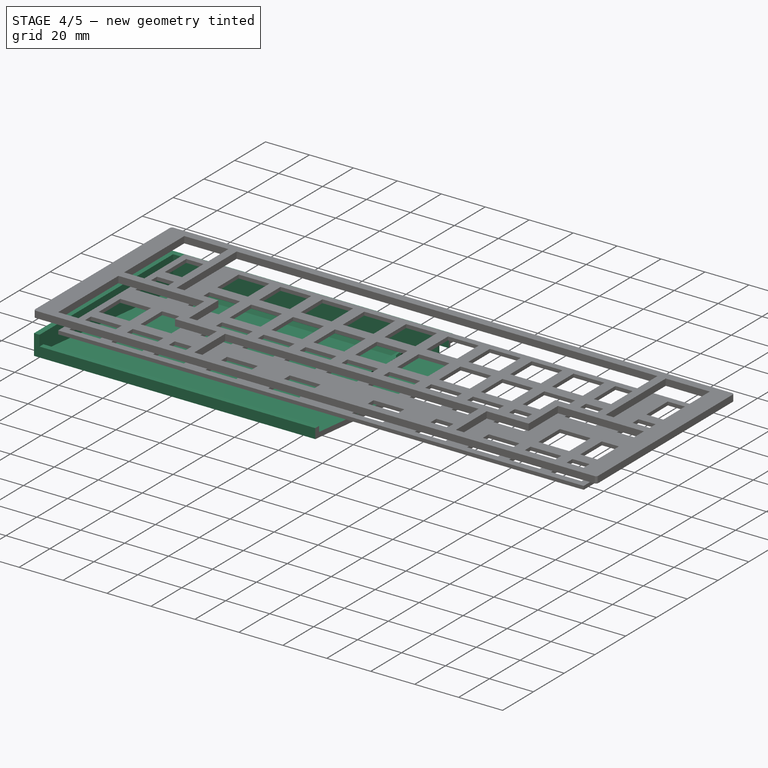
[diagram: stage 4 of 5 — iso view after this stage's code; geometry added in this stage tinted green]
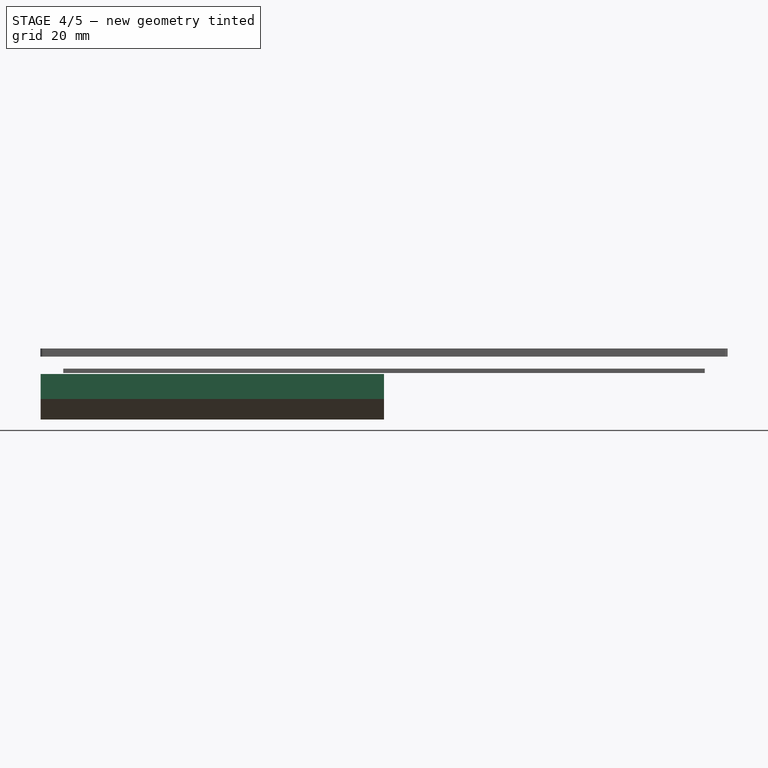
[diagram: stage 4 of 5 — front view after this stage's code; geometry added in this stage tinted green]
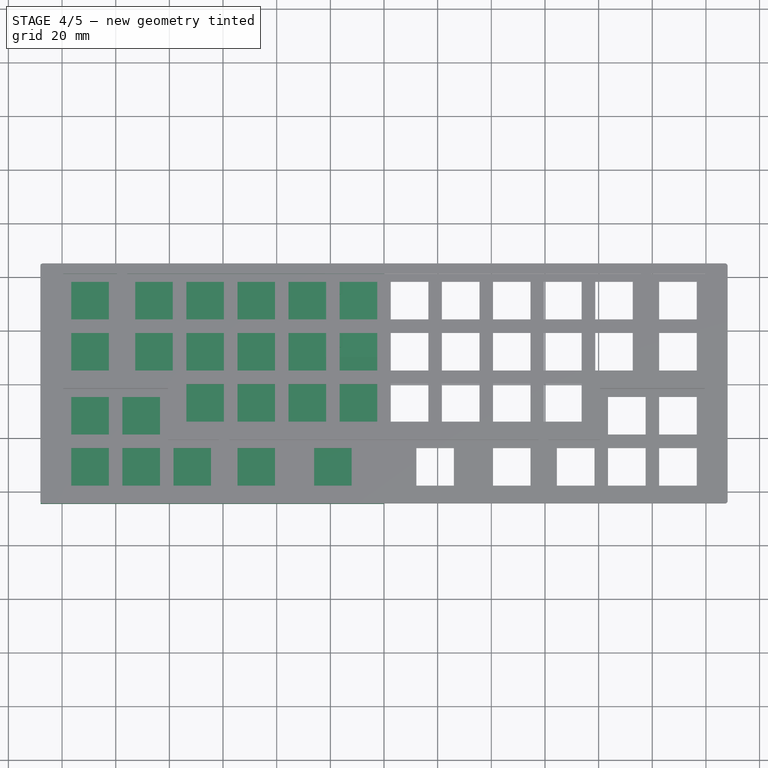
[diagram: stage 4 of 5 — top view after this stage's code; geometry added in this stage tinted green]
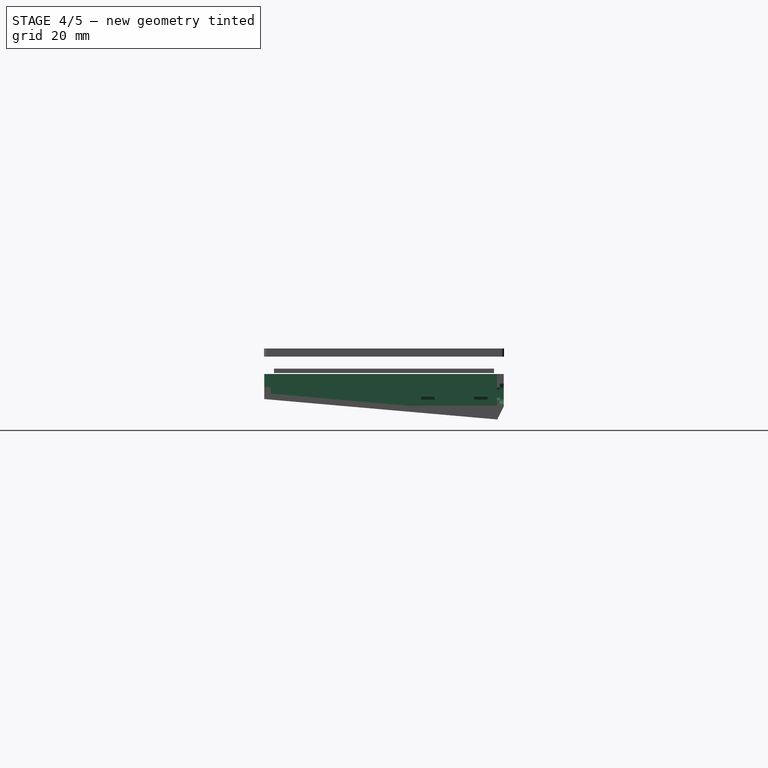
[diagram: stage 4 of 5 — right view after this stage's code; geometry added in this stage tinted green]
FEATURE [Sketcher::SketchObject] Sketch024
  FullyConstrained = true
  MapMode = 5
  Placement = pos=(-130.587,2.9e-14,-2.9e-14) rot=(0.57735,0.57735,0.57735;2.0944rad)
  Support = -> [DatumPlane006]
  expr: Constraints[10] = <<vals_Case>>.caseTopHeight - <<vals_Case>>.wallThickness
  expr: Constraints[7] = <<vals_Case>>.heightAbovePlate
  expr: Constraints[8] = <<vals_Case>>.caseHeight / 2
  expr: Constraints[9] = <<vals_Case>>.caseHeight
  sketch-geometry (4):
    g0: LineSegment StartX=-47.2438 StartY=7.5 StartZ=0 EndX=47.2438 EndY=7.5 EndZ=0
    g1: LineSegment StartX=47.2438 StartY=7.5 StartZ=0 EndX=47.2438 EndY=-2 EndZ=0
    g2: LineSegment StartX=47.2438 StartY=-2 StartZ=0 EndX=-47.2438 EndY=-2 EndZ=0
    g3: LineSegment StartX=-47.2438 StartY=-2 StartZ=0 EndX=-47.2438 EndY=7.5 EndZ=0
  constraints (12):
    c: Horizontal(g0)
    c: Coincident(g0,g1)
    c: Vertical(g1)
    c: Coincident(g1,g2)
    c: Horizontal(g2)
    c: Coincident(g3,g0)
    c: Vertical(g3)
    c: DistanceY(g-1,g0) = 7.5
    c: DistanceX(g0,g-1) = 47.2438
    c: DistanceX(g0,g0) = 94.4875
    c: DistanceY(g1,g1) = 9.5
    c: Coincident(g3,g2)
FEATURE [PartDesign::Pocket] Pocket013
  BaseFeature = -> Pocket010
  Direction = (-1,1e-16,-1e-16)
  Length = 261.175
  Length2 = 5
  Profile = -> Sketch024
  ReferenceAxis = -> Sketch024 [N_Axis]
  Reversed = true
  Type = 0
  expr: Length = <<vals_Case>>.caseWidth
FEATURE [Sketcher::SketchObject] Sketch025
  FullyConstrained = true
  MapMode = 5
  Placement = pos=(0,0,7.5) rot=(0,0,1;0rad)
  Support = -> [DatumPlane004]
  expr: Constraints[17] = <<vals_Case>>.caseHeight - 2 * <<vals_Case>>.wallThickness - 2 * <<vals_Case>>.acrylSafety
  expr: Constraints[18] = <<vals_Case>>.caseWidth / 2 - <<vals_Case>>.wallThickness - <<vals_Case>>.acrylSafety
  expr: Constraints[19] = <<vals_Case>>.wallThickness * 3
  expr: Constraints[20] = <<vals_Case>>.wallThickness * 3
  expr: Constraints[21] = <<vals_Case>>.wallThickness * 3
  expr: Constraints[22] = <<vals_Case>>.wallThickness * 3
  sketch-geometry (8):
    g0: LineSegment StartX=-127.988 StartY=44.6438 StartZ=0 EndX=0 EndY=44.6438 EndZ=0
    g1: LineSegment StartX=0 StartY=44.6438 StartZ=0 EndX=0 EndY=-44.6438 EndZ=0
    g2: LineSegment StartX=0 StartY=-44.6438 StartZ=0 EndX=-127.988 EndY=-44.6438 EndZ=0
    g3: LineSegment StartX=-127.988 StartY=-44.6438 StartZ=0 EndX=-127.988 EndY=44.6438 EndZ=0
    g4: LineSegment StartX=-135.488 StartY=52.1438 StartZ=0 EndX=7.5 EndY=52.1438 EndZ=0
    g5: LineSegment StartX=7.5 StartY=52.1438 StartZ=0 EndX=7.5 EndY=-52.1438 EndZ=0
    g6: LineSegment StartX=7.5 StartY=-52.1438 StartZ=0 EndX=-135.488 EndY=-52.1438 EndZ=0
    g7: LineSegment StartX=-135.488 StartY=-52.1438 StartZ=0 EndX=-135.488 EndY=52.1438 EndZ=0
  constraints (23):
    c: Coincident(g0,g1)
    c: Coincident(g1,g2)
    c: Coincident(g2,g3)
    c: Coincident(g3,g0)
    c: Horizontal(g0)
    c: Horizontal(g2)
    c: Vertical(g1)
    c: Vertical(g3)
    c: Coincident(g4,g5)
    c: Coincident(g5,g6)
    c: Coincident(g6,g7)
    c: Coincident(g7,g4)
    c: Horizontal(g4)
    c: Horizontal(g6)
    c: Vertical(g5)
    c: Vertical(g7)
    c: Symmetric(g1,g1,g-1)
    c: DistanceY(g1,g1) = 89.2875
    c: DistanceX(g0,g0) = 127.988
    c: DistanceY(g0,g4) = 7.5
    c: DistanceX(g4,g0) = 7.5
    c: DistanceX(g1,g5) = 7.5
    c: DistanceY(g5,g1) = 7.5
FEATURE [PartDesign::Pocket] Pocket014
  BaseFeature = -> Pocket013
  Direction = (0,0,-1)
  Length = 30
  Length2 = 5
  Profile = -> Sketch025
  ReferenceAxis = -> Sketch025 [N_Axis]
  Type = 0
  expr: Length = 30
FEATURE [PartDesign::Plane] DatumPlane008
  AttachmentOffset = pos=(0,0,5.1) rot=(0,0,1;0rad)
  Length = 116.629
  MapMode = 5
  Placement = pos=(-125.487,2.84e-14,-2.84e-14) rot=(0.57735,0.57735,0.57735;2.0944rad)
  ResizeMode = 0
  Support = -> [DatumPlane006]
  Width = 100.777
  expr: .AttachmentOffset.Base.z = 2 * <<vals_Case>>.wallThickness + <<vals_Case>>.acrylSafety
FEATURE [Sketcher::SketchObject] Sketch026
  ExternalGeometry = -> [Pocket014]
  FullyConstrained = false
  MapMode = 5
  Placement = pos=(-125.487,2.84e-14,-2.84e-14) rot=(0.57735,0.57735,0.57735;2.0944rad)
  Support = -> [DatumPlane008]
  expr: Constraints[15] = <<vals_Case>>.wallThickness
  expr: Constraints[16] = <<vals_Case>>.wallThickness
  expr: Constraints[6] = <<vals_Case>>.wallThickness
  sketch-geometry (8):
    g0: LineSegment StartX=-42.1438 StartY=-9.32747 StartZ=0 EndX=41.2726 EndY=-16.6255 EndZ=0
    g1: LineSegment StartX=41.2726 StartY=-16.6255 StartZ=0 EndX=42.1437 EndY=-14.8832 EndZ=0
    g2: LineSegment StartX=42.1437 StartY=-14.8832 StartZ=0 EndX=42.1437 EndY=0 EndZ=0
    g3: LineSegment StartX=42.1437 StartY=0 StartZ=0 EndX=-44.6438 EndY=0 EndZ=0
    g4: LineSegment StartX=41.2726 StartY=-16.6255 StartZ=0 EndX=42.2438 EndY=-18.9291 EndZ=0
    g5: LineSegment StartX=-42.1438 StartY=-9.32747 StartZ=0 EndX=-42.1438 EndY=-6.82747 EndZ=0
    g6: LineSegment StartX=-42.1438 StartY=-6.82747 StartZ=0 EndX=-44.6438 EndY=-6.82747 EndZ=0
    g7: LineSegment StartX=-44.6438 StartY=-6.82747 StartZ=0 EndX=-44.6438 EndY=0 EndZ=0
  constraints (22):
    c: Coincident(g0,g1)
    c: Coincident(g1,g2)
    c: Vertical(g2)
    c: Coincident(g2,g3)
    c: Horizontal(g3)
    c: Coincident(g4,g0)
    c: Distance(g4) = 2.5
    c: PointOnObject(g3,g-1)
    c: Coincident(g0,g5)
    c: Vertical(g5)
    c: Coincident(g5,g6)
    c: PointOnObject(g6,g-4)
    c: Horizontal(g6)
    c: Coincident(g6,g7)
    c: Vertical(g7)
    c: DistanceX(g-4,g0) = 2.5
    c: DistanceY(g5,g5) = 2.5
    c: Coincident(g4,g-5)
    c: Parallel(g1,g-5)
    c: DistanceX(g1,g-5) = 2.5
    c: DistanceY(g-4,g0) = 2
    c: Parallel(g-6,g0)
FEATURE [PartDesign::Pocket] Pocket015
  BaseFeature = -> Pocket014
  Direction = (-1,0,0)
  Length = 261.175
  Length2 = 5
  Profile = -> Sketch026
  ReferenceAxis = -> Sketch026 [N_Axis]
  Reversed = true
  Type = 0
  expr: Length = <<vals_Case>>.caseWidth
FEATURE [Sketcher::SketchObject] Sketch027
  ExternalGeometry = -> [Pocket015]
  FullyConstrained = false
  MapMode = 5
  Placement = pos=(0,44.6438,0) rot=(0,0.707107,0.707107;3.14159rad)
  Support = -> [Pocket015]
  expr: Constraints[16] = 7.5
  expr: Constraints[17] = 13.5 / 2
  sketch-geometry (8):
    g0: ArcOfCircle CenterX=4.75 CenterY=-7.56457 CenterZ=0 NormalX=0 NormalY=0 NormalZ=1 AngleXU=0 Radius=2 StartAngle=0 EndAngle=1.5708
    g1: ArcOfCircle CenterX=4.75 CenterY=-11.0646 CenterZ=0 NormalX=0 NormalY=0 NormalZ=1 AngleXU=0 Radius=2 StartAngle=4.71239 EndAngle=6.28319
    g2: LineSegment StartX=6.75 StartY=-7.56457 StartZ=0 EndX=6.75 EndY=-11.0646 EndZ=0
    g3: LineSegment StartX=4.75 StartY=-5.56457 StartZ=0 EndX=0 EndY=-5.56457 EndZ=0
    g4: LineSegment StartX=4.75 StartY=-13.0646 StartZ=0 EndX=0 EndY=-13.0646 EndZ=0
    g5: LineSegment StartX=0 StartY=-13.0646 StartZ=0 EndX=0 EndY=-5.56457 EndZ=0
    g6: LineSegment StartX=0 StartY=-4.5 StartZ=0 EndX=0 EndY=-5.56457 EndZ=0
    g7: LineSegment StartX=0 StartY=-14.1291 StartZ=0 EndX=0 EndY=-13.0646 EndZ=0
  constraints (22):
    c: Horizontal(g1,g1)
    c: Horizontal(g0,g0)
    c: Vertical(g0,g0)
    c: Vertical(g1,g1)
    c: Vertical(g1,g0)
    c: Coincident(g2,g0)
    c: Coincident(g2,g1)
    c: Vertical(g2)
    c: Coincident(g3,g0)
    c: PointOnObject(g3,g-2)
    c: Horizontal(g3)
    c: Coincident(g4,g1)
    c: PointOnObject(g4,g-2)
    c: Coincident(g5,g4)
    c: Coincident(g5,g3)
    c: Horizontal(g4)
    c: DistanceY(g5,g5) = 7.5
    c: DistanceX(g3,g0) = 6.75
    c: Radius(g0) = 2
    c: Coincident(g6,g3)
    c: Coincident(g7,g4)
    c: Equal(g7,g6)
FEATURE [PartDesign::Pocket] Pocket016
  BaseFeature = -> Pocket015
  Direction = (0,-1,2e-16)
  Length = 1.5
  Length2 = 5
  Profile = -> Sketch027
  ReferenceAxis = -> Sketch027 [N_Axis]
  Type = 0
FEATURE [Sketcher::SketchObject] Sketch028
  ExternalGeometry = -> [Pocket016]
  FullyConstrained = true
  MapMode = 5
  Placement = pos=(0,43.1438,0) rot=(0,0.707107,0.707107;3.14159rad)
  Support = -> [Pocket016]
  sketch-geometry (8):
    g0: ArcOfCircle CenterX=4 CenterY=-8.06457 CenterZ=0 NormalX=0 NormalY=0 NormalZ=1 AngleXU=0 Radius=1 StartAngle=0 EndAngle=1.5708
    g1: ArcOfCircle CenterX=4 CenterY=-10.5646 CenterZ=0 NormalX=0 NormalY=0 NormalZ=1 AngleXU=0 Radius=1 StartAngle=4.71239 EndAngle=6.28319
    g2: LineSegment StartX=5 StartY=-8.06457 StartZ=0 EndX=5 EndY=-10.5646 EndZ=0
    g3: LineSegment StartX=4 StartY=-7.06457 StartZ=0 EndX=0 EndY=-7.06457 EndZ=0
    g4: LineSegment StartX=0 StartY=-7.06457 StartZ=0 EndX=0 EndY=-11.5646 EndZ=0
    g5: LineSegment StartX=0 StartY=-11.5646 StartZ=0 EndX=4 EndY=-11.5646 EndZ=0
    g6: LineSegment StartX=0 StartY=-13.0646 StartZ=0 EndX=0 EndY=-11.5646 EndZ=0
    g7: LineSegment StartX=0 StartY=-5.56457 StartZ=0 EndX=0 EndY=-7.06457 EndZ=0
  constraints (24):
    c: Vertical(g1,g1)
    c: Vertical(g0,g0)
    c: Horizontal(g0,g0)
    c: Horizontal(g1,g1)
    c: Vertical(g1,g0)
    c: Equal(g0,g1)
    c: Radius(g0) = 1
    c: Coincident(g2,g0)
    c: Coincident(g2,g1)
    c: Coincident(g3,g0)
    c: PointOnObject(g3,g-2)
    c: Horizontal(g3)
    c: Coincident(g4,g3)
    c: Vertical(g4)
    c: Coincident(g5,g4)
    c: Coincident(g5,g1)
    c: Horizontal(g5)
    c: Coincident(g6,g4)
    c: Coincident(g7,g3)
    c: Equal(g7,g6)
    c: DistanceY(g7,g7) = 1.5
    c: DistanceX(g3,g0) = 5
    c: Coincident(g7,g-4)
    c: Coincident(g6,g-3)
FEATURE [PartDesign::Pocket] Pocket017
  BaseFeature = -> Pocket016
  Direction = (0,-1,2e-16)
  Length = 5
  Length2 = 5
  Profile = -> Sketch028
  ReferenceAxis = -> Sketch028 [N_Axis]
  Type = 0
FEATURE [PartDesign::Plane] DatumPlane009
  Length = 116.629
  MapMode = 2
  Placement = pos=(0,0,0) rot=(0.57735,0.57735,0.57735;2.0944rad)
  ResizeMode = 0
  Support = -> [YZ_Plane175]
  Width = 100.777
FEATURE [Sketcher::SketchObject] Sketch029
  FullyConstrained = true
  MapMode = 5
  Placement = pos=(0,0,0) rot=(0.57735,0.57735,0.57735;2.0944rad)
  Support = -> [DatumPlane009]
  expr: Constraints[0] = 13.75
  expr: Constraints[1] = <<vals_Case>>.caseHeight / 2 - 2 * <<vals_Case>>.wallThickness
  sketch-geometry (5):
    g0: LineSegment StartX=10.2438 StartY=-13.75 StartZ=0 EndX=42.2438 EndY=-17.25 EndZ=0
    g1: LineSegment StartX=42.2438 StartY=-13.75 StartZ=0 EndX=42.2438 EndY=-17.25 EndZ=0
    g2: LineSegment StartX=10.2438 StartY=-13.75 StartZ=0 EndX=10.2438 EndY=-11.75 EndZ=0
    g3: LineSegment StartX=10.2438 StartY=-11.75 StartZ=0 EndX=42.2438 EndY=-11.75 EndZ=0
    g4: LineSegment StartX=42.2438 StartY=-11.75 StartZ=0 EndX=42.2438 EndY=-13.75 EndZ=0
  constraints (15):
    c: DistanceY(g0,g-1) = 13.75
    c: DistanceX(g-1,g1) = 42.2438
    c: Vertical(g1)
    c: Coincident(g0,g1)
    c: DistanceY(g1,g1) = 3.5
    c: DistanceX(g0,g1) = 32
    c: Coincident(g2,g0)
    c: Vertical(g2)
    c: Coincident(g3,g2)
    c: Horizontal(g3)
    c: Coincident(g4,g3)
    c: Coincident(g4,g1)
    c: Vertical(g4)
    c: Horizontal(g1,g0)
    c: DistanceY(g2,g2) = 2
FEATURE [PartDesign::Pad] Pad011
  BaseFeature = -> Pocket017
  Direction = (1,-1e-16,1e-16)
  Length = 22
  Length2 = 10
  Profile = -> Sketch029
  ReferenceAxis = -> Sketch029 [N_Axis]
  Reversed = true
  Type = 0
FEATURE [PartDesign::Pocket] Pocket018
  BaseFeature = -> Pad011
  Direction = (1e-16,-1e-16,-1)
  Length = 2
  Length2 = 5
  Profile = -> Pad011 [Face26]
  Type = 0
FEATURE [Sketcher::SketchObject] Sketch030
  FullyConstrained = true
  MapMode = 5
  Placement = pos=(1.5e-15,-1.5e-15,-13.75) rot=(0,0,1;0rad)
  Support = -> [Pocket018]
  expr: Constraints[11] = <<vals_Case>>.caseHeight / 2 - 2 * <<vals_Case>>.wallThickness - <<vals_Case>>.acrylSafety - 2.35
  sketch-geometry (8):
    g0: LineSegment StartX=-19.5 StartY=39.7938 StartZ=0 EndX=-14.5 EndY=39.7938 EndZ=0
    g1: LineSegment StartX=-14.5 StartY=39.7938 StartZ=0 EndX=-14.5 EndY=32.4938 EndZ=0
    g2: LineSegment StartX=-14.5 StartY=32.4938 StartZ=0 EndX=-19.5 EndY=32.4938 EndZ=0
    g3: LineSegment StartX=-19.5 StartY=32.4938 StartZ=0 EndX=-19.5 EndY=39.7938 EndZ=0
    g4: LineSegment StartX=-19.5 StartY=19.9938 StartZ=0 EndX=-14.5 EndY=19.9938 EndZ=0
    g5: LineSegment StartX=-14.5 StartY=19.9938 StartZ=0 EndX=-14.5 EndY=12.6938 EndZ=0
    g6: LineSegment StartX=-14.5 StartY=12.6938 StartZ=0 EndX=-19.5 EndY=12.6938 EndZ=0
    g7: LineSegment StartX=-19.5 StartY=12.6938 StartZ=0 EndX=-19.5 EndY=19.9938 EndZ=0
  constraints (24):
    c: Coincident(g0,g1)
    c: Coincident(g1,g2)
    c: Coincident(g2,g3)
    c: Coincident(g3,g0)
    c: Horizontal(g0)
    c: Horizontal(g2)
    c: Vertical(g1)
    c: Vertical(g3)
    c: DistanceX(g0,g0) = 5
    c: DistanceX(g0,g-1) = 19.5
    c: DistanceY(g3,g3) = 7.3
    c: DistanceY(g-1,g0) = 39.7938
    c: Coincident(g4,g5)
    c: Coincident(g5,g6)
    c: Coincident(g6,g7)
    c: Coincident(g7,g4)
    c: Horizontal(g4)
    c: Horizontal(g6)
    c: Vertical(g5)
    c: Vertical(g7)
    c: DistanceX(g4,g4) = 5
    c: DistanceY(g7,g7) = 7.3
    c: Vertical(g2,g4)
    c: DistanceY(g4,g2) = 12.5
FEATURE [PartDesign::Pocket] Pocket019
  BaseFeature = -> Pocket018
  Direction = (1e-16,-1e-16,-1)
  Length = 1.5
  Length2 = 5
  Profile = -> Sketch030
  ReferenceAxis = -> Sketch030 [N_Axis]
  Type = 0
FEATURE [Sketcher::SketchObject] Sketch031
  FullyConstrained = true
  MapMode = 5
  Placement = pos=(1.4e-15,-1.7e-15,-15.25) rot=(0,0,1;0rad)
  Support = -> [Pocket019]
  expr: Constraints[10] = <<vals_Case>>.caseHeight / 2 - <<vals_Case>>.wallThickness * 2 - <<vals_Case>>.acrylSafety - 2.35 - 1.15
  expr: Constraints[8] = 10.3 + 14.5
  sketch-geometry (4):
    g0: LineSegment StartX=-15.35 StartY=38.6438 StartZ=0 EndX=-18.35 EndY=38.6438 EndZ=0
    g1: LineSegment StartX=-18.35 StartY=38.6438 StartZ=0 EndX=-18.35 EndY=13.8438 EndZ=0
    g2: LineSegment StartX=-18.35 StartY=13.8438 StartZ=0 EndX=-15.35 EndY=13.8438 EndZ=0
    g3: LineSegment StartX=-15.35 StartY=13.8438 StartZ=0 EndX=-15.35 EndY=38.6438 EndZ=0
  constraints (12):
    c: Coincident(g0,g1)
    c: Coincident(g1,g2)
    c: Coincident(g2,g3)
    c: Coincident(g3,g0)
    c: Horizontal(g0)
    c: Horizontal(g2)
    c: Vertical(g1)
    c: Vertical(g3)
    c: DistanceY(g3,g3) = 24.8
    c: DistanceX(g0,g0) = 3
    c: DistanceY(g-1,g0) = 38.6438
    c: DistanceX(g2,g-1) = 15.35
FEATURE [PartDesign::Pad] Pad012
  BaseFeature = -> Pocket019
  Direction = (-1e-16,1e-16,1)
  Length = 5.85
  Length2 = 10
  Profile = -> Sketch031
  ReferenceAxis = -> Sketch031 [N_Axis]
  Type = 0
  expr: Length = 1.5 + 1.2 + 0.15 + 3
FEATURE [Sketcher::SketchObject] Sketch032
  FullyConstrained = false
  MapMode = 5
  Placement = pos=(0,13.8438,-1.5e-15) rot=(1,0,0;1.5708rad)
  Support = -> [Pad012]
  expr: Constraints[43] = 0.25mm
  expr: Constraints[4] = 1.5 + 1.2 + 0.15
  sketch-geometry (24):
    g0: LineSegment StartX=-17.8498 StartY=-12.4 StartZ=0 EndX=-17.35 EndY=-12.4 EndZ=0
    g1: LineSegment StartX=-17.35 StartY=-12.4 StartZ=0 EndX=-17.35 EndY=-14.75 EndZ=0
    g2: LineSegment StartX=-17.85 StartY=-15.25 StartZ=0 EndX=-18.35 EndY=-15.25 EndZ=0
    g3: LineSegment StartX=-16.35 StartY=-14.75 StartZ=0 EndX=-16.35 EndY=-11.65 EndZ=0
    g4: LineSegment StartX=-16.2942 StartY=-11.4205 StartZ=0 EndX=-15.7175 EndY=-10.3044 EndZ=0
    g5: LineSegment StartX=-14.85 StartY=-8.9 StartZ=0 EndX=-14.85 EndY=-15.25 EndZ=0
    g6: LineSegment StartX=-14.85 StartY=-15.25 StartZ=0 EndX=-15.85 EndY=-15.25 EndZ=0
    g7: LineSegment StartX=-18.0998 StartY=-12.15 StartZ=0 EndX=-18.0998 EndY=-11.7081 EndZ=0
    g8: LineSegment StartX=-18.0261 StartY=-11.5309 StartZ=0 EndX=-16.6821 EndY=-10.1941 EndZ=0
    g9: LineSegment StartX=-16.5752 StartY=-10.15 StartZ=0 EndX=-15.8116 EndY=-10.15 EndZ=0
    g10: ArcOfCircle CenterX=-15.85 CenterY=-11.65 CenterZ=0 NormalX=0 NormalY=0 NormalZ=1 AngleXU=0 Radius=0.5 StartAngle=2.66466 EndAngle=3.14159
    g11: ArcOfCircle CenterX=-15.85 CenterY=-14.75 CenterZ=0 NormalX=0 NormalY=0 NormalZ=1 AngleXU=0 Radius=0.5 StartAngle=3.14159 EndAngle=4.71239
    g12: ArcOfCircle CenterX=-17.85 CenterY=-14.75 CenterZ=0 NormalX=0 NormalY=0 NormalZ=1 AngleXU=0 Radius=0.5 StartAngle=4.71239 EndAngle=6.28319
    g13: ArcOfCircle CenterX=-17.8498 CenterY=-12.15 CenterZ=0 NormalX=0 NormalY=0 NormalZ=1 AngleXU=0 Radius=0.25 StartAngle=3.14159 EndAngle=4.71239
    g14: GeomPoint X=-18.0998 Y=-12.4 Z=0
    g15: ArcOfCircle CenterX=-17.8498 CenterY=-11.7081 CenterZ=0 NormalX=0 NormalY=0 NormalZ=1 AngleXU=0 Radius=0.25 StartAngle=2.35348 EndAngle=3.14159
    g16: GeomPoint X=-18.3498 Y=-11.65 Z=0
    g17: LineSegment StartX=-14.85 StartY=-8.9 StartZ=0 EndX=-18.85 EndY=-8.9 EndZ=0
    g18: LineSegment StartX=-18.85 StartY=-8.9 StartZ=0 EndX=-18.85 EndY=-15.25 EndZ=0
    g19: LineSegment StartX=-18.85 StartY=-15.25 StartZ=0 EndX=-18.35 EndY=-15.25 EndZ=0
    g20: ArcOfCircle CenterX=-15.8116 CenterY=-10.2559 CenterZ=0 NormalX=0 NormalY=0 NormalZ=1 AngleXU=0 Radius=0.10585 StartAngle=5.80625 EndAngle=7.85398
    g21: GeomPoint X=-15.6377 Y=-10.15 Z=0
    g22: ArcOfCircle CenterX=-16.5752 CenterY=-10.3016 CenterZ=0 NormalX=0 NormalY=0 NormalZ=1 AngleXU=0 Radius=0.151597 StartAngle=1.5708 EndAngle=2.35348
    g23: GeomPoint X=-16.6377 Y=-10.15 Z=0
  constraints (52):
    c: Coincident(g0,g1)
    c: Horizontal(g0)
    c: Vertical(g1)
    c: Horizontal(g2)
    c: DistanceY(g2,g14) = 2.85
    c: Vertical(g3)
    c: Vertical(g5)
    c: Coincident(g5,g6)
    c: Horizontal(g6)
    c: Vertical(g7)
    c: DistanceX(g23,g21) = 1
    c: DistanceY(g14,g16) = 0.75
    c: Tangent(g3,g10) = 1.5708
    c: Tangent(g4,g10) = 1.5708
    c: Horizontal(g10,g16)
    c: Tangent(g3,g11) = 1.5708
    c: Tangent(g6,g11) = 1.5708
    c: Tangent(g1,g12) = 1.5708
    c: Tangent(g2,g12) = 1.5708
    c: Equal(g12,g11)
    c: DistanceX(g2,g1) = 1
    c: DistanceX(g1,g3) = 1
    c: Horizontal(g6,g2)
    c: Radius(g11) = 0.5
    c: Equal(g10,g12)
    c: PointOnObject(g14,g0)
    c: PointOnObject(g14,g7)
    c: Tangent(g0,g13) = -1.5708
    c: Tangent(g7,g13) = 1.5708
    c: Tangent(g7,g15) = 1.5708
    c: Tangent(g8,g15) = 1.5708
    c: Equal(g13,g15)
    c: Radius(g13) = 0.25
    c: DistanceX(g6,g6) = 1
    c: Coincident(g5,g17)
    c: Coincident(g17,g18)
    c: Vertical(g18)
    c: Coincident(g18,g19)
    c: Coincident(g19,g2)
    c: Horizontal(g19)
    c: DistanceX(g19,g19) = 0.5
    c: Horizontal(g9)
    c: DistanceY(g3,g23) = 1.5
    c: DistanceX(g16,g7) = 0.25
    c: PointOnObject(g21,g4)
    c: PointOnObject(g21,g9)
    c: Tangent(g4,g20) = -1.5708
    c: Tangent(g9,g20) = 1.5708
    c: PointOnObject(g23,g8)
    c: PointOnObject(g23,g9)
    c: Tangent(g8,g22) = 1.5708
    c: Tangent(g9,g22) = 1.5708
FEATURE [PartDesign::Pocket] Pocket020
  BaseFeature = -> Pad012
  Direction = (0,1,-2e-16)
  Length = 25
  Length2 = 5
  Profile = -> Sketch032
  ReferenceAxis = -> Sketch032 [N_Axis]
  Type = 0
FEATURE [Sketcher::SketchObject] Sketch033
  ExternalGeometry = -> [Pocket020]
  FullyConstrained = false
  MapMode = 5
  Placement = pos=(0,-2.2e-15,-10.15) rot=(0,0,1;0rad)
  Support = -> [Pocket020]
  sketch-geometry (4):
    g0: LineSegment StartX=-18.7056 StartY=18.8438 StartZ=0 EndX=-15.3909 EndY=18.8438 EndZ=0
    g1: LineSegment StartX=-15.3909 StartY=18.8438 StartZ=0 EndX=-15.3909 EndY=33.6438 EndZ=0
    g2: LineSegment StartX=-15.3909 StartY=33.6438 StartZ=0 EndX=-18.7056 EndY=33.6438 EndZ=0
    g3: LineSegment StartX=-18.7056 StartY=33.6438 StartZ=0 EndX=-18.7056 EndY=18.8438 EndZ=0
  constraints (10):
    c: Coincident(g0,g1)
    c: Coincident(g1,g2)
    c: Coincident(g2,g3)
    c: Coincident(g3,g0)
    c: Horizontal(g0)
    c: Horizontal(g2)
    c: Vertical(g1)
    c: Vertical(g3)
    c: DistanceY(g-4,g0) = 5
    c: DistanceY(g2,g-3) = 5
FEATURE [PartDesign::Pocket] Pocket021
  BaseFeature = -> Pocket020
  Direction = (0,-2e-16,-1)
  Length = 0
  Length2 = 5
  Profile = -> Sketch033
  ReferenceAxis = -> Sketch033 [N_Axis]
  Type = 3
  UpToFace = -> Pocket020 [Face54]
FEATURE [Sketcher::SketchObject] Sketch034
  ExternalGeometry = -> [Pocket021]
  FullyConstrained = true
  MapMode = 5
  Placement = pos=(1.4e-15,-1.7e-15,-15.25) rot=(0,0,1;0rad)
  Support = -> [Pocket021]
  sketch-geometry (4):
    g0: LineSegment StartX=-18.85 StartY=32.4938 StartZ=0 EndX=-14.85 EndY=32.4938 EndZ=0
    g1: LineSegment StartX=-14.85 StartY=32.4938 StartZ=0 EndX=-14.85 EndY=19.9938 EndZ=0
    g2: LineSegment StartX=-14.85 StartY=19.9938 StartZ=0 EndX=-18.85 EndY=19.9938 EndZ=0
    g3: LineSegment StartX=-18.85 StartY=19.9938 StartZ=0 EndX=-18.85 EndY=32.4938 EndZ=0
  constraints (10):
    c: Coincident(g0,g1)
    c: Coincident(g1,g2)
    c: Coincident(g2,g3)
    c: Coincident(g3,g0)
    c: Horizontal(g0)
    c: Horizontal(g2)
    c: Vertical(g1)
    c: Vertical(g3)
    c: Coincident(g0,g-3)
    c: Coincident(g1,g-4)
FEATURE [PartDesign::Pad] Pad013
  BaseFeature = -> Pocket021
  Direction = (-1e-16,1e-16,1)
  Length = 1.5
  Length2 = 10
  Profile = -> Sketch034
  ReferenceAxis = -> Sketch034 [N_Axis]
  Type = 0
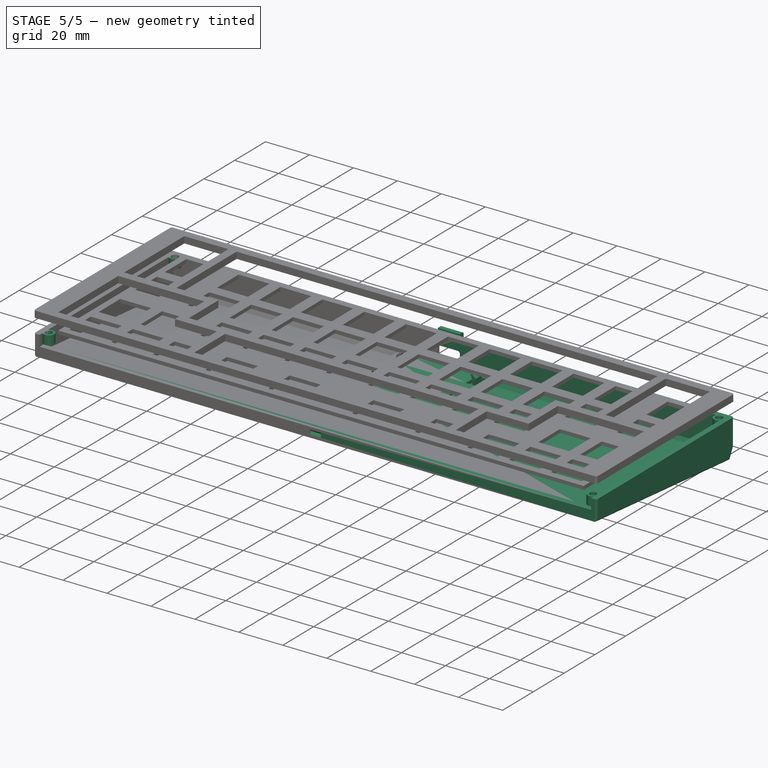
[diagram: stage 5 of 5 — iso view after this stage's code; geometry added in this stage tinted green]
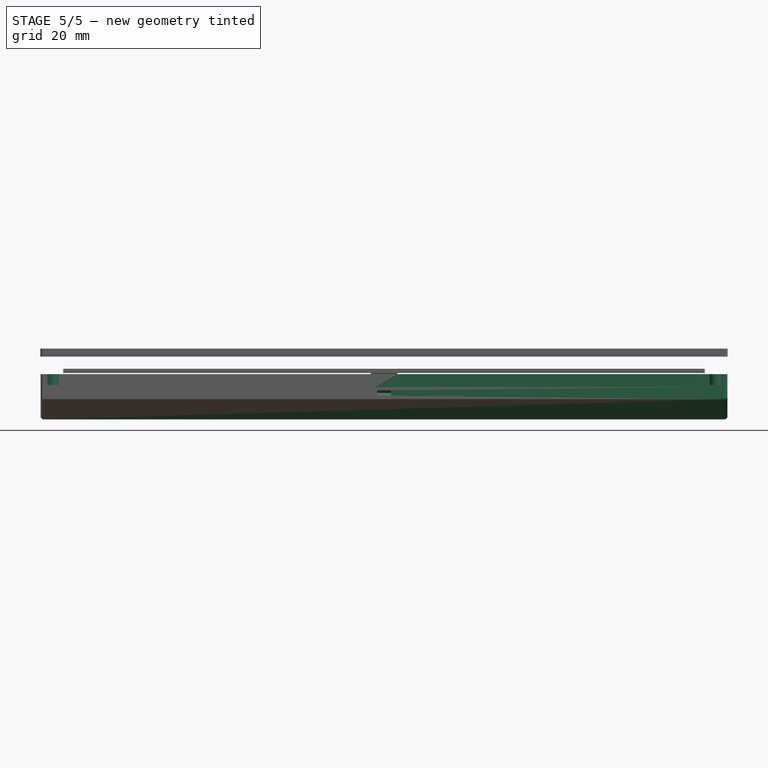
[diagram: stage 5 of 5 — front view after this stage's code; geometry added in this stage tinted green]
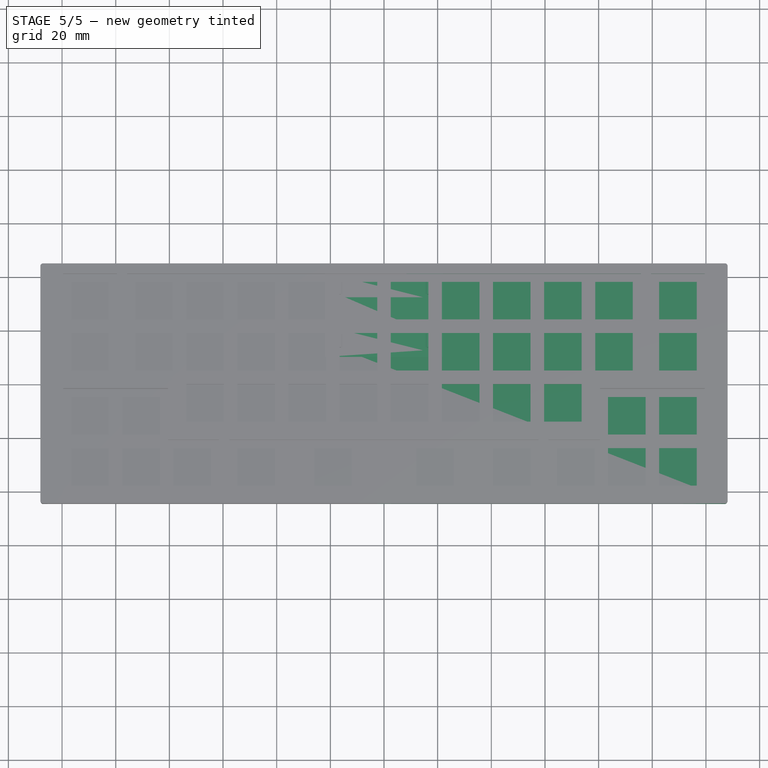
[diagram: stage 5 of 5 — top view after this stage's code; geometry added in this stage tinted green]
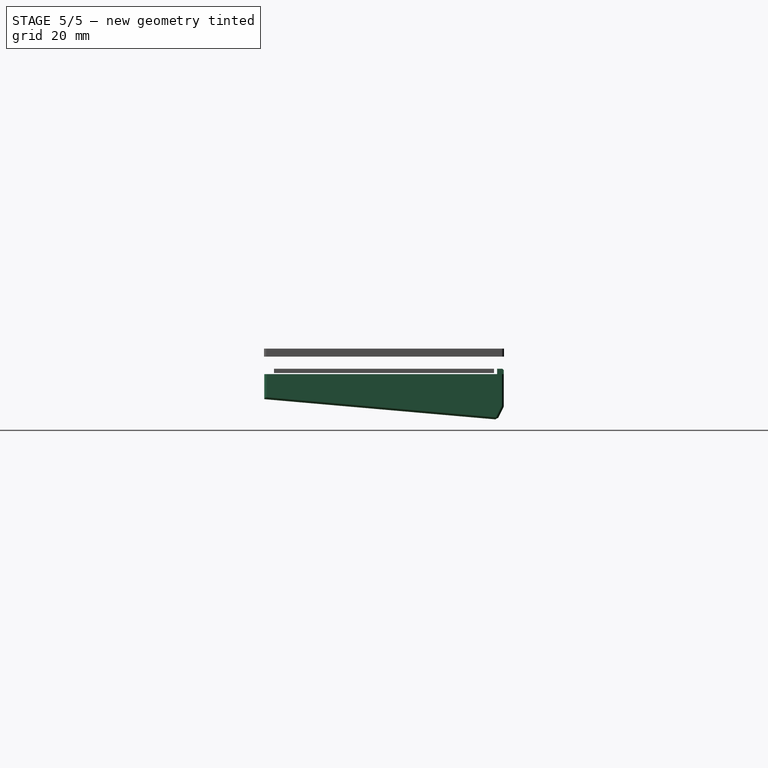
[diagram: stage 5 of 5 — right view after this stage's code; geometry added in this stage tinted green]
FEATURE [Sketcher::SketchObject] Sketch035
  FullyConstrained = true
  MapMode = 5
  Placement = pos=(2e-16,-2e-16,-2) rot=(0,0,1;0rad)
  Support = -> [Pad013]
  expr: Constraints[2] = <<vals_Case>>.caseWidth / 2 - <<vals_Case>>.wallThickness - (<<vals_Case>>.borderW - <<vals_Case>>.wallThickness) / 2
  expr: Constraints[3] = <<vals_Case>>.caseHeight / 2 - <<vals_Case>>.borderH
  sketch-geometry (2):
    g0: Circle CenterX=-123.825 CenterY=40.9813 CenterZ=0 NormalX=0 NormalY=0 NormalZ=1 AngleXU=0 Radius=2.5
    g1: Circle CenterX=-123.825 CenterY=-40.9813 CenterZ=0 NormalX=0 NormalY=0 NormalZ=1 AngleXU=0 Radius=2.5
  constraints (5):
    c: Equal(g0,g1)
    c: Radius(g0) = 2.5
    c: DistanceX(g0,g-1) = 123.825
    c: DistanceY(g-1,g0) = 40.9813
    c: Symmetric(g1,g0,g-1)
FEATURE [PartDesign::Pad] Pad014
  BaseFeature = -> Pad013
  Direction = (-1e-16,1e-16,1)
  Length = 4.1
  Length2 = 10
  Profile = -> Sketch035
  ReferenceAxis = -> Sketch035 [N_Axis]
  Reversed = true
  Type = 0
  expr: Offset = 0
FEATURE [PartDesign::Body] Body007  label="plate"
  Group = -> [Sketch036,Pad015,Sketch037,Pocket022,Sketch038,Pocket023,Sketch039,Pocket024]
  Origin = -> Origin209
  Tip = -> Pocket024
FEATURE [Sketcher::SketchObject] Sketch040
  ExternalGeometry = -> [Pad014]
  FullyConstrained = false
  MapMode = 5
  Placement = pos=(2e-16,-2e-16,-2) rot=(0,0,1;0rad)
  Support = -> [Pad014]
  sketch-geometry (2):
    g0: Circle CenterX=-123.825 CenterY=40.9813 CenterZ=0 NormalX=0 NormalY=0 NormalZ=1 AngleXU=0 Radius=1.55
    g1: Circle CenterX=-123.825 CenterY=-40.9813 CenterZ=0 NormalX=0 NormalY=0 NormalZ=1 AngleXU=0 Radius=1.55
FEATURE [PartDesign::Pocket] Pocket
  BaseFeature = -> Pad014
  Direction = (1e-16,-1e-16,-1)
  Length = 3.1
  Length2 = 5
  Profile = -> Sketch040
  ReferenceAxis = -> Sketch040 [N_Axis]
  Type = 0
FEATURE [Sketcher::SketchObject] Sketch042
  ExternalGeometry = -> [Pocket]
  FullyConstrained = true
  MapMode = 5
  Placement = pos=(2e-16,-2e-16,-2) rot=(0,0,1;0rad)
  Support = -> [Pocket]
  sketch-geometry (4):
    g0: LineSegment StartX=0 StartY=42.1438 StartZ=0 EndX=-5 EndY=42.1438 EndZ=0
    g1: LineSegment StartX=-5 StartY=42.1438 StartZ=0 EndX=-5 EndY=44.6438 EndZ=0
    g2: LineSegment StartX=-5 StartY=44.6438 StartZ=0 EndX=0 EndY=44.6438 EndZ=0
    g3: LineSegment StartX=0 StartY=42.1438 StartZ=0 EndX=0 EndY=44.6438 EndZ=0
  constraints (11):
    c: Horizontal(g0)
    c: Coincident(g1,g0)
    c: Vertical(g1)
    c: Coincident(g2,g1)
    c: Horizontal(g2)
    c: DistanceX(g2,g2) = 5
    c: Coincident(g3,g0)
    c: Coincident(g3,g2)
    c: Coincident(g2,g-3)
    c: PointOnObject(g0,g-2)
    c: DistanceY(g1,g1) = 2.5
FEATURE [PartDesign::Pad] Pad
  BaseFeature = -> Pocket
  Direction = (-1e-16,1e-16,1)
  Length = 2
  Length2 = 10
  Profile = -> Sketch042
  ReferenceAxis = -> Sketch042 [N_Axis]
  Type = 0
FEATURE [PartDesign::Chamfer] Chamfer
  Angle = 45
  Base = -> Pad [Edge89]
  BaseFeature = -> Pad
  ChamferType = 0
  FlipDirection = false
  Size = 0.5
  Size2 = 1
  SupportTransform = false
  UseAllEdges = false
FEATURE [Sketcher::SketchObject] Sketch043
  ExternalGeometry = -> [Chamfer]
  FullyConstrained = true
  MapMode = 5
  Placement = pos=(0,0,0) rot=(0.57735,0.57735,0.57735;2.0944rad)
  Support = -> [Chamfer]
  sketch-geometry (6):
    g0: LineSegment StartX=44.6438 StartY=-2 StartZ=0 EndX=43.6438 EndY=-3 EndZ=0
    g1: LineSegment StartX=43.6438 StartY=-3 StartZ=0 EndX=44.6438 EndY=-4 EndZ=0
    g2: LineSegment StartX=44.6438 StartY=-2 StartZ=0 EndX=44.6438 EndY=-4 EndZ=0
    g3: LineSegment StartX=-44.6438 StartY=-8 StartZ=0 EndX=-43.6438 EndY=-9 EndZ=0
    g4: LineSegment StartX=-43.6438 StartY=-9 StartZ=0 EndX=-44.6438 EndY=-10 EndZ=0
    g5: LineSegment StartX=-44.6438 StartY=-10 StartZ=0 EndX=-44.6438 EndY=-8 EndZ=0
  constraints (18):
    c: Coincident(g0,g1)
    c: Perpendicular(g1,g0)
    c: Vertical(g0,g1)
    c: Coincident(g2,g0)
    c: Coincident(g2,g1)
    c: DistanceY(g0,g-1) = 2
    c: DistanceY(g0,g0) = 1
    c: Coincident(g3,g4)
    c: Coincident(g4,g5)
    c: Coincident(g5,g3)
    c: DistanceX(g4,g3) = 1
    c: DistanceY(g3,g3) = 1
    c: Perpendicular(g4,g3)
    c: DistanceY(g3,g-1) = 8
    c: DistanceX(g0,g0) = 1
    c: PointOnObject(g4,g-4)
    c: PointOnObject(g3,g-4)
    c: PointOnObject(g1,g-3)
FEATURE [PartDesign::Pocket] Pocket025
  BaseFeature = -> Chamfer
  Direction = (-1,0,0)
  Length = 2.6
  Length2 = 5
  Profile = -> Sketch043
  ReferenceAxis = -> Sketch043 [N_Axis]
  Type = 0
FEATURE [Sketcher::SketchObject] Sketch045
  ExternalGeometry = -> [Pocket025]
  FullyConstrained = true
  MapMode = 5
  Placement = pos=(1.5e-15,-1.5e-15,-13.75) rot=(0,0,1;0rad)
  Support = -> [Pocket025]
  sketch-geometry (12):
    g0: LineSegment StartX=-22 StartY=10.2438 StartZ=0 EndX=-22 EndY=18.2438 EndZ=0
    g1: LineSegment StartX=-22 StartY=18.2438 StartZ=0 EndX=-20.2 EndY=18.2438 EndZ=0
    g2: LineSegment StartX=-20.2 StartY=18.2438 StartZ=0 EndX=-20.2 EndY=12.4438 EndZ=0
    g3: LineSegment StartX=-20.2 StartY=12.4438 StartZ=0 EndX=-17 EndY=12.4438 EndZ=0
    g4: LineSegment StartX=-17 StartY=12.4438 StartZ=0 EndX=-17 EndY=10.2438 EndZ=0
    g5: LineSegment StartX=-17 StartY=10.2438 StartZ=0 EndX=-22 EndY=10.2438 EndZ=0
    g6: LineSegment StartX=-22 StartY=34.2438 StartZ=0 EndX=-22 EndY=42.2438 EndZ=0
    g7: LineSegment StartX=-22 StartY=42.2438 StartZ=0 EndX=-17 EndY=42.2438 EndZ=0
    g8: LineSegment StartX=-17 StartY=42.2438 StartZ=0 EndX=-17 EndY=39.9438 EndZ=0
    g9: LineSegment StartX=-17 StartY=39.9438 StartZ=0 EndX=-20.2 EndY=39.9438 EndZ=0
    g10: LineSegment StartX=-20.2 StartY=39.9438 StartZ=0 EndX=-20.2 EndY=34.2438 EndZ=0
    g11: LineSegment StartX=-20.2 StartY=34.2438 StartZ=0 EndX=-22 EndY=34.2438 EndZ=0
  constraints (35):
    c: Vertical(g0)
    c: Coincident(g0,g1)
    c: Horizontal(g1)
    c: Coincident(g1,g2)
    c: Vertical(g2)
    c: Coincident(g2,g3)
    c: Horizontal(g3)
    c: Coincident(g3,g4)
    c: Vertical(g4)
    c: Coincident(g4,g5)
    c: Coincident(g5,g0)
    c: DistanceY(g0,g0) = 8
    c: DistanceX(g5,g5) = 5
    c: DistanceY(g4,g4) = 2.2
    c: DistanceX(g1,g1) = 1.8
    c: Vertical(g6)
    c: Coincident(g6,g7)
    c: Horizontal(g7)
    c: Coincident(g7,g8)
    c: Coincident(g8,g9)
    c: Horizontal(g9)
    c: Coincident(g9,g10)
    c: Vertical(g10)
    c: Coincident(g10,g11)
    c: Coincident(g11,g6)
    c: Vertical(g6,g0)
    c: Horizontal(g11)
    c: Vertical(g10,g1)
    c: Vertical(g8)
    c: DistanceY(g0,g6) = 16
    c: DistanceY(g6,g6) = 8
    c: DistanceY(g8,g8) = 2.3
    c: Vertical(g8,g3)
    c: Horizontal(g5)
    c: Coincident(g0,g-3)
FEATURE [PartDesign::Pad] Pad017
  BaseFeature = -> Pocket025
  Direction = (-1e-16,1e-16,1)
  Length = 1.5
  Length2 = 10
  Profile = -> Sketch045
  ReferenceAxis = -> Sketch045 [N_Axis]
  Type = 0
FEATURE [PartDesign::Chamfer] Chamfer002
  Angle = 45
  Base = -> Pocket025 [Edge29]
  BaseFeature = -> Pocket025
  ChamferType = 0
  FlipDirection = false
  Size = 0.5
  Size2 = 1
  SupportTransform = false
  UseAllEdges = false
FEATURE [PartDesign::Chamfer] Chamfer003
  Angle = 45
  Base = -> Chamfer002 [Edge70,Edge68]
  BaseFeature = -> Chamfer002
  ChamferType = 0
  FlipDirection = false
  Size = 0.75
  Size2 = 1
  SupportTransform = false
  UseAllEdges = false
FEATURE [PartDesign::SubtractiveBox] Box
  AttacherType = Attacher::AttachEngine3D
  AttachmentOffset = pos=(115.588,0,0) rot=(0,0,1;0rad)
  BaseFeature = -> Chamfer003
  Height = 10
  Length = 10
  MapMode = 5
  Placement = pos=(-115.588,41.3667,-20.6833) rot=(0,0.850651,0.525731;3.14159rad)
  Refine = true
  Support = -> [Chamfer003]
  Width = 10
  expr: .AttachmentOffset.Base.x = <<vals_Case>>.caseWidth / 2 - <<vals_Case>>.innerWallThickness * 10
FEATURE [PartDesign::Fillet] Fillet003
  Base = -> Box [Edge90,Edge88,Edge65]
  BaseFeature = -> Box
  Placement = pos=(-115.588,41.3667,-20.6833) rot=(0,0.850651,0.525731;3.14159rad)
  Radius = 1
  SupportTransform = false
  UseAllEdges = false
FEATURE [Part::Mirroring] Part__Mirroring001  label="bottom (Mirror #2)"
  Base = (0,0,0)
  Normal = (1,0,0)
  Source = -> Body006
FEATURE [Part::MultiFuse] Fusion001  label="case_bottom"
  Refine = true
  Shapes = -> [Part__Mirroring001,Body006]
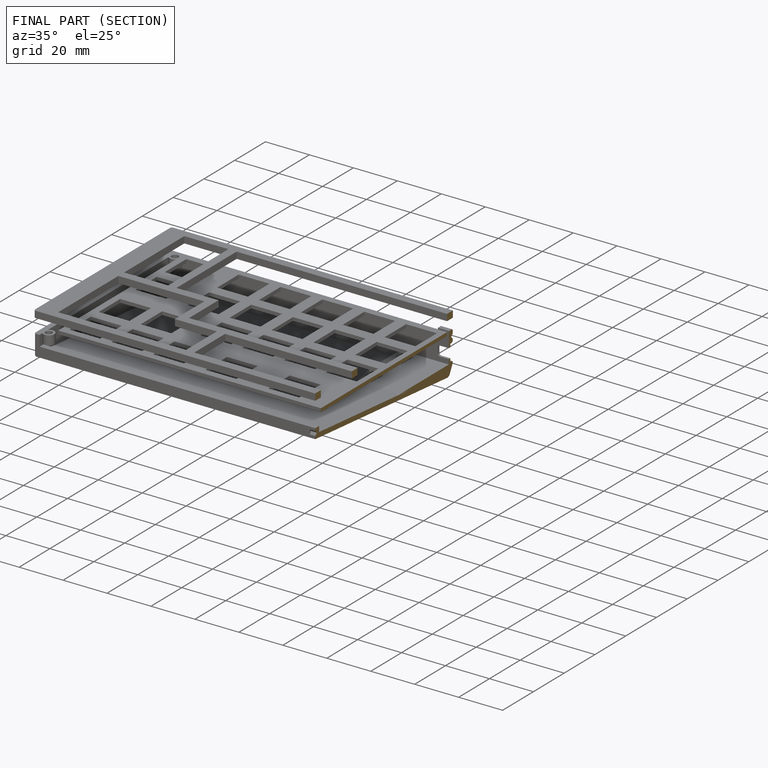
[diagram: finished part — half-section view (interior)]
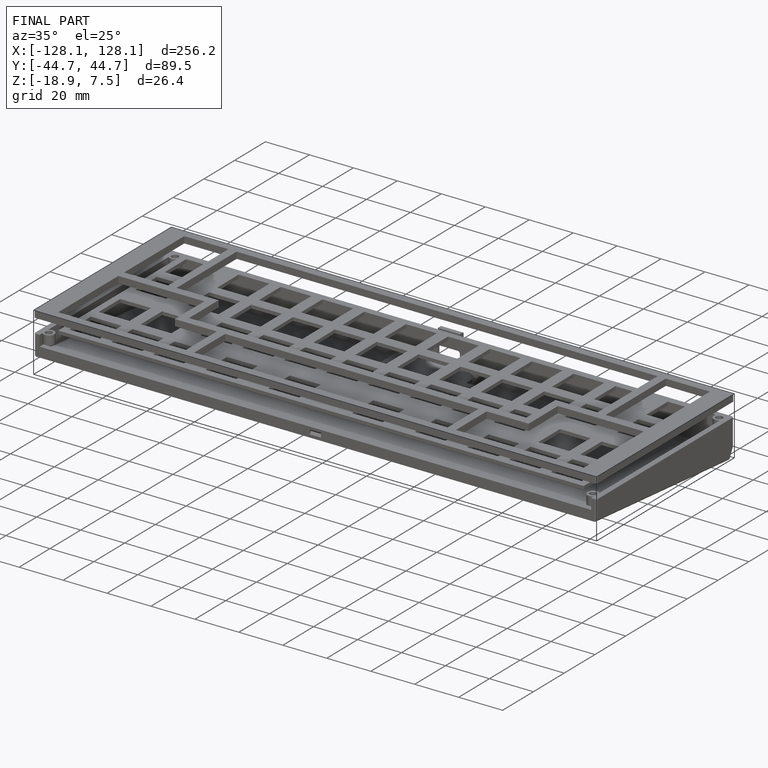
[diagram: finished part — iso view with bounding-box wireframe]
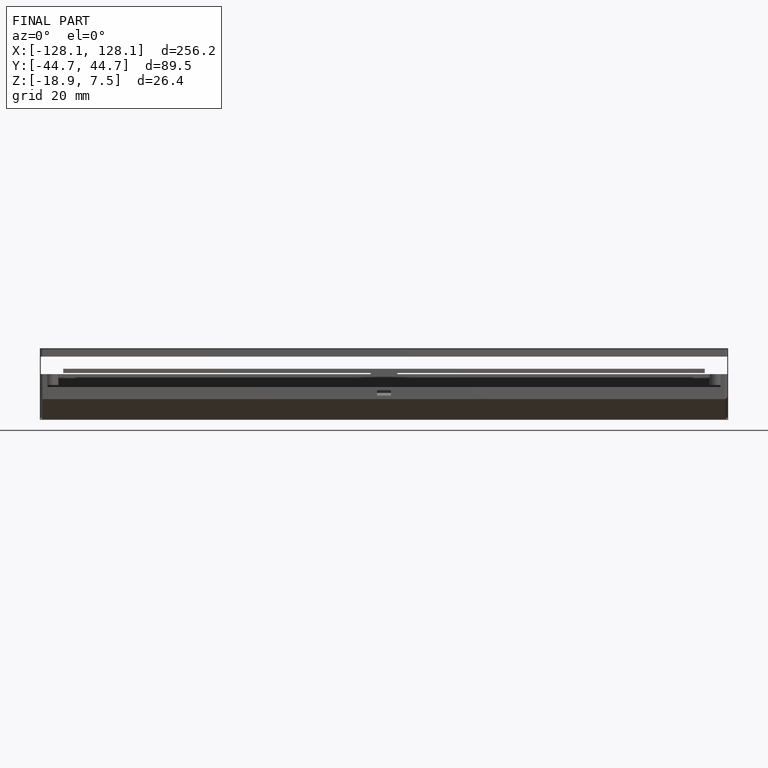
[diagram: finished part — front view with bounding-box wireframe]
